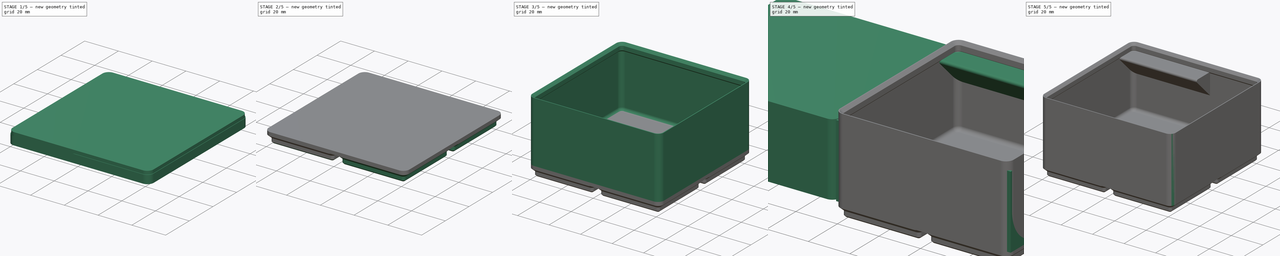
[diagram: build sequence overview — one tinted view per stage of 5, left to right]
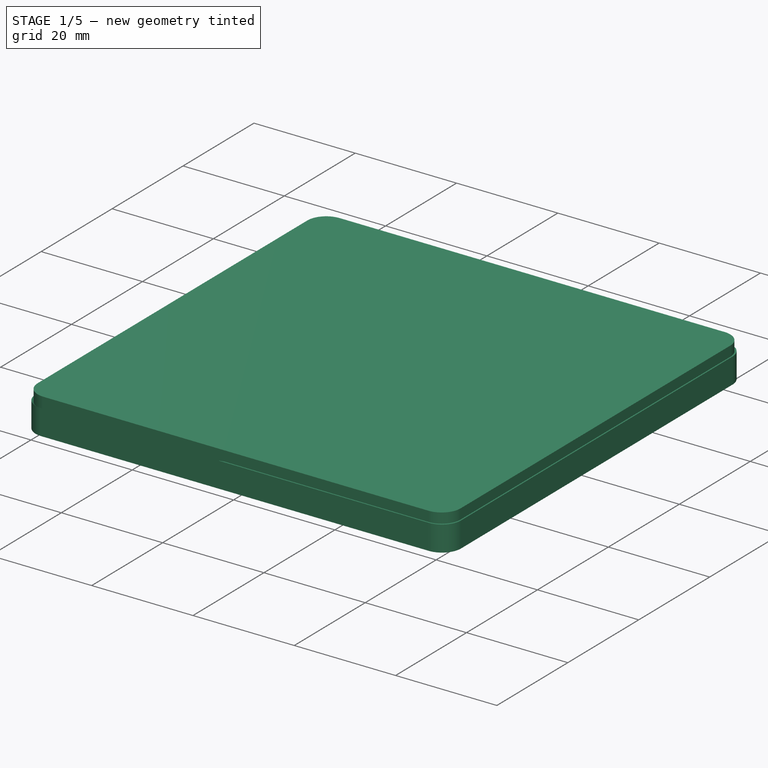
[diagram: stage 1 of 5 — iso view after this stage's code; geometry added in this stage tinted green]
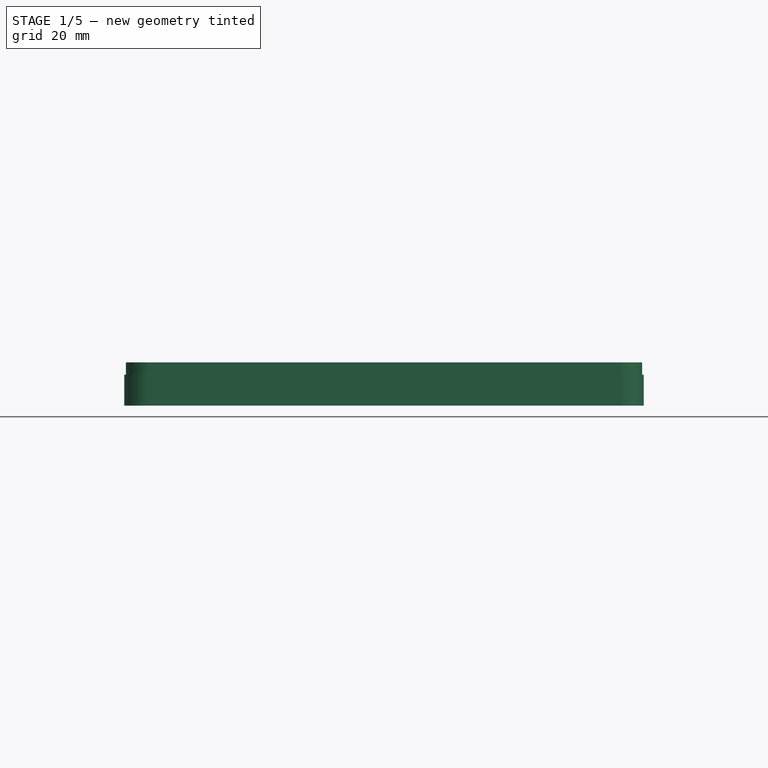
[diagram: stage 1 of 5 — front view after this stage's code; geometry added in this stage tinted green]
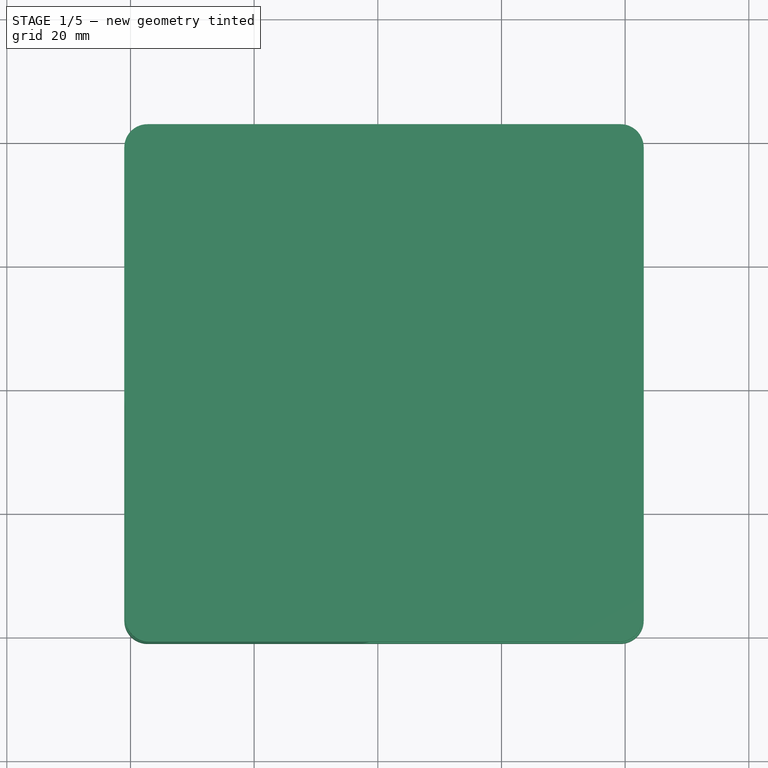
[diagram: stage 1 of 5 — top view after this stage's code; geometry added in this stage tinted green]
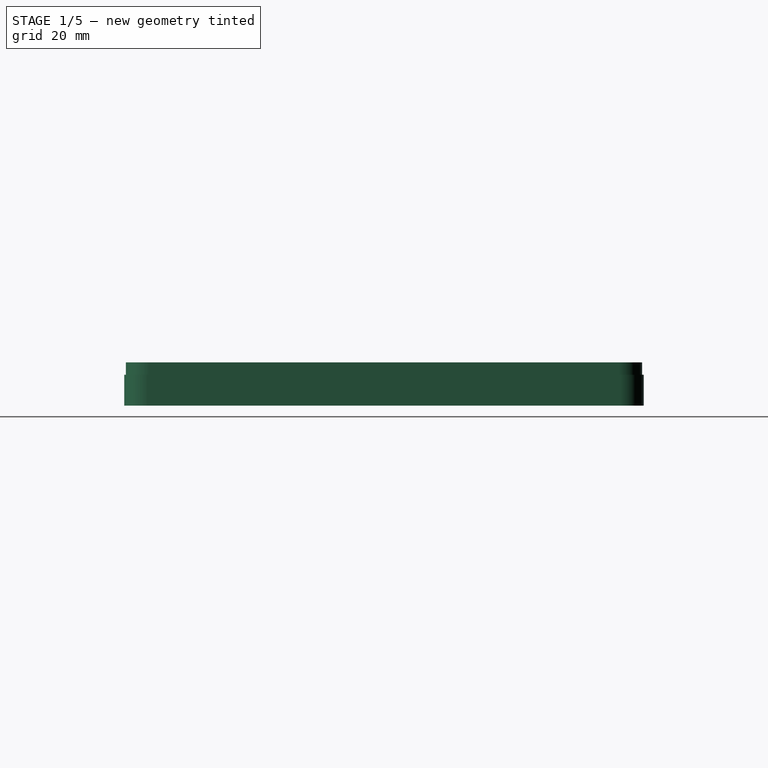
[diagram: stage 1 of 5 — right view after this stage's code; geometry added in this stage tinted green]
FCSTD DOCUMENT  (FreeCAD 0.21R33771 (Git))
Label: Parametric_Gridfinity-Bin
License: Creative Commons Attribution-ShareAlike 4.0
LicenseURL: https://creativecommons.org/licenses/by-sa/4.0/
objects: Sketcher::SketchObject×19, PartDesign::Pocket×6, PartDesign::LinearPattern×6, PartDesign::Pad×5, PartDesign::MultiTransform×3, PartDesign::SubtractiveLoft×2, PartDesign::Body×2, PartDesign::AdditivePipe×2, PartDesign::Mirrored×2, Spreadsheet::Sheet×1, PartDesign::Plane×1, PartDesign::Boolean×1
note: 64 computed .brp shape members not serialized (recipe doc carries the construction recipe); baked Part::Feature solids carry a one-line shape summary decoded from their .brp

FEATURE [Spreadsheet::Sheet] Spreadsheet  label="data"
  cells = A1='     BASIC VARIABLES - Create your bin here.; A2='x_units; B2(x_units)=2; C2='     This is your grid size; A3='y_units; B3(y_units)=2; A4='z_units; B4(z_units)=6; C4='     This is your bin height - 6u is a good default; A5='mag_dia; B5(mag_hole_dia)==6.5 mm; C5='     Pocket size for 6x2mm magnets - 6,5mm is Gridfinity spec; A6='layer_height; B6(layer_height)==0.2 mm; C6='     Specify the layer height set in your slicer to ensure the screw hole print support prints correctly.; A7='wall_thickness; B7(wall_thickness)==0.95 mm; C7='     Default is 0.95mm. Values above 1.65mm will break the model ; A9='     Optional features: Set to 1 to enable, 0 to disable; A10='toggle_lip; B10(toggle_lip)=1; C10='     The profile top lip makes the bins stackable.; A11='toggle_scoop; B11(toggle_scoop)=1; C11='     A scooped bottom to make extracting small parts easier.; A12='toggle_handle; B12(toggle_handle)=1; C12='     A handle / space for label stickers.; A13='toggle_handle_fullwidth; B13(toggle_handle_fullwidth)=0; C13='     If enabled, the handle will span the full width of the bin. If disabled, handle will have the length specified below.; A14='toggle_magholes; B14(toggle_magholes)=1; C14='     Recesses in the bottom to fit magnets. Disable to improve print time.; A15='toggle_screwholes; B15(toggle_screwholes)=1; C15='     Recess to add screws instead of magnets, for use with magnetic base plates. Must enable magnet holes as well.; A16='toggle_fill; B16(toggle_fill)=0; C16='     Fill the inside of the bin, providing you with a template to add add cut outs as needed. Enabling this disables the handle and scoop features.; A17='handle_length; B17(handle_length)==50 mm; C17='     Set handle length. Only applies if "toggle_handle_fullwidth" is set to 0.; A18='handle_depth; B18(handle_depth)==11 mm; C18='     How far the handle protrudes into the bin. Use the width of your label tape + 2mm.; A19='toggle_efficientfloor; B19(toggle_efficientfloor)=0; C19='     Efficient floors hollow out the bottom section of the bin, using much less filament. If enabled, this will disable mag-holes, screw-holes, bin-fill, and scoop.; A20='floor_thickness; B20(floor_thickness)==wall_thickness; C20='     Defaults to wall_thickness, but can be overwritten.; A23='     GRIDFINITY SPEC BASE VALUES - Don't change if you want to stay compatible; F23='     LOGIC FOR FEATURE-TOGGLING - DON'T MESS WITH THIS!; A24='xy_unit_val; B24(xy_unit_val)==42 mm; F24='eq_lip; G24(eq_lip)==toggle_lip == 1 ? 1 : 0.0001; A25='z_unit_val; B25(z_unit_val)==7 mm; F25='eq_scoop; G25(eq_scoop)==toggle_scoop * 3 + toggle_fill + toggle_efficientfloor == 3 ? 1 : -1; A26='corner_top; B26(corner_top)==7.5 mm; F26='eq_handle; G26(eq_handle)==toggle_handle * 2 + toggle_fill == 2 ? 1 : -1; A27='corner_mid; B27(corner_mid)==3.2 mm; F27='eq_handle_length; G27(eq_handle_length)==toggle_handle_fullwidth == 1 ? xy_unit_val * x_units : handle_length; A28='corner_btm; B28(corner_btm)==1.6 mm; F28='eq_magnets; G28(eq_magnets)==toggle_magholes * 2 + toggle_efficientfloor == 2 ? 0 : 100000; A29='angle; B29(angle)==45 °; F29='eq_screws; G29(eq_screws)==toggle_screwholes * 2 + toggle_magholes * 2 + toggle_efficientfloor == 4 ? 0 : 100000; F30='eq_fill; G30(eq_fill)==toggle_fill * 2 + toggle_efficientfloor == 2 ? 0 : eq_filloffset * -1; A31='h_top; B31(h_top)==2.15 mm; F31='eq_floor; G31(eq_floor)==toggle_efficientfloor == 0 ? 100000 : baseplate_z - offset; A32='h_mid; B32(h_mid)==1.8 mm; A33='h_btm; B33(h_btm)==0.8 mm; F33='eq_filloffset; G33(eq_filloffset)==xy_unit_val * x_units - 2 * offset; A34='xy_top; B34(xy_top)==41.5 mm; A35='xy_mid; B35(xy_mid)==xy_top - 2 * h_top; A36='xy_btm; B36(xy_btm)==xy_top - 2 * (h_top + h_btm); A37='baseplate_z; B37(baseplate_z)==5 mm; A39='offset; B39(offset)==0.25 mm; A41='mag_depth; B41(mag_depth)==2.4 mm; A42='screw_dia; B42(screw_dia)==3 mm; C42='for M3 x 4mm flat head screws - This too is Gridfinity spec; A43='screw_depth; B43(screw_depth)==4.3 mm; A44='hole_inset; B44(hole_inset)==4.8 mm; A46='chamfer_rad_inner_btm; B46(chamfer_rad_inner_btm)==3 mm; A47='inside_btm_chamfer; B47(inside_btm_chamfer)==2 mm; A48='handle_rad; B48(handle_rad)==1 mm
FEATURE [Sketcher::SketchObject] Sketch
  FullyConstrained = true
  MapMode = 5
  Support = -> [XY_Plane]
  expr: Constraints[19] = <<data>>.corner_top
  expr: Constraints[20] = <<data>>.xy_unit_val * <<data>>.x_units
  expr: Constraints[21] = <<data>>.xy_unit_val * <<data>>.y_units
  expr: Constraints[22] = <<data>>.xy_unit_val / 2
  expr: Constraints[23] = <<data>>.xy_unit_val / 2
  sketch-geometry (10):
    g0: ArcOfCircle CenterX=-17.25 CenterY=59.25 CenterZ=0 NormalX=0 NormalY=0 NormalZ=1 AngleXU=0 Radius=3.75 StartAngle=1.5708 EndAngle=3.14159
    g1: LineSegment StartX=-17.25 StartY=63 StartZ=0 EndX=59.25 EndY=63 EndZ=0
    g2: ArcOfCircle CenterX=59.25 CenterY=59.25 CenterZ=0 NormalX=0 NormalY=0 NormalZ=1 AngleXU=0 Radius=3.75 StartAngle=3.64e-14 EndAngle=1.5708
    g3: LineSegment StartX=63 StartY=59.25 StartZ=0 EndX=63 EndY=-17.25 EndZ=0
    g4: ArcOfCircle CenterX=59.25 CenterY=-17.25 CenterZ=0 NormalX=0 NormalY=0 NormalZ=1 AngleXU=0 Radius=3.75 StartAngle=4.71239 EndAngle=6.28319
    g5: LineSegment StartX=59.25 StartY=-21 StartZ=0 EndX=-17.25 EndY=-21 EndZ=0
    g6: ArcOfCircle CenterX=-17.25 CenterY=-17.25 CenterZ=0 NormalX=0 NormalY=0 NormalZ=1 AngleXU=0 Radius=3.75 StartAngle=3.14159 EndAngle=4.71239
    g7: LineSegment StartX=-21 StartY=-17.25 StartZ=0 EndX=-21 EndY=59.25 EndZ=0
    g8: GeomPoint X=-21 Y=63 Z=0
    g9: GeomPoint X=63 Y=-21 Z=0
  constraints (24):
    c: Tangent(g0,g1) = 1.5708
    c: Tangent(g1,g2) = 1.5708
    c: Tangent(g2,g3) = 1.5708
    c: Tangent(g3,g4) = 1.5708
    c: Tangent(g4,g5) = 1.5708
    c: Tangent(g5,g6) = 1.5708
    c: Tangent(g6,g7) = 1.5708
    c: Tangent(g7,g0) = 1.5708
    c: Horizontal(g1)
    c: Horizontal(g5)
    c: Vertical(g3)
    c: Vertical(g7)
    c: Equal(g0,g2)
    c: Equal(g2,g4)
    c: Equal(g4,g6)
    c: PointOnObject(g8,g1)
    c: PointOnObject(g8,g7)
    c: PointOnObject(g9,g3)
    c: PointOnObject(g9,g5)
    c: Diameter(g0) = 7.5
    c: DistanceX(g0,g2) = 84
    c: DistanceY(g4,g1) = 84
    c: DistanceY(g5,g-1) = 21
    c: DistanceX(g6,g-1) = 21
FEATURE [PartDesign::Pad] Pad
  Direction = (0,0,1)
  Length = 5
  Length2 = 10
  Profile = -> Sketch
  ReferenceAxis = -> Sketch [N_Axis]
  Type = 0
  expr: Length = <<data>>.baseplate_z
FEATURE [Sketcher::SketchObject] Sketch001  label="top_sk"
  AttachmentOffset = pos=(0,0,5) rot=(0,0,1;0rad)
  FullyConstrained = true
  MapMode = 5
  Placement = pos=(0,0,5) rot=(0,0,1;0rad)
  Support = -> [XY_Plane]
  expr: .AttachmentOffset.Base.z = <<data>>.baseplate_z
  expr: Constraints[20] = <<data>>.corner_top
  expr: Constraints[22] = <<data>>.xy_unit_val
  sketch-geometry (10):
    g0: ArcOfCircle CenterX=-17.25 CenterY=17.25 CenterZ=0 NormalX=0 NormalY=0 NormalZ=1 AngleXU=0 Radius=3.75 StartAngle=1.5708 EndAngle=3.14159
    g1: LineSegment StartX=-17.25 StartY=21 StartZ=0 EndX=17.25 EndY=21 EndZ=0
    g2: ArcOfCircle CenterX=17.25 CenterY=17.25 CenterZ=0 NormalX=0 NormalY=0 NormalZ=1 AngleXU=0 Radius=3.75 StartAngle=0 EndAngle=1.5708
    g3: LineSegment StartX=21 StartY=17.25 StartZ=0 EndX=21 EndY=-17.25 EndZ=0
    g4: ArcOfCircle CenterX=17.25 CenterY=-17.25 CenterZ=0 NormalX=0 NormalY=0 NormalZ=1 AngleXU=0 Radius=3.75 StartAngle=4.71239 EndAngle=6.28319
    g5: LineSegment StartX=17.25 StartY=-21 StartZ=0 EndX=-17.25 EndY=-21 EndZ=0
    g6: ArcOfCircle CenterX=-17.25 CenterY=-17.25 CenterZ=0 NormalX=0 NormalY=0 NormalZ=1 AngleXU=0 Radius=3.75 StartAngle=3.14159 EndAngle=4.71239
    g7: LineSegment StartX=-21 StartY=-17.25 StartZ=0 EndX=-21 EndY=17.25 EndZ=0
    g8: GeomPoint X=-21 Y=21 Z=0
    g9: GeomPoint X=21 Y=-21 Z=0
  constraints (23):
    c: Tangent(g0,g1) = 1.5708
    c: Tangent(g1,g2) = 1.5708
    c: Tangent(g2,g3) = 1.5708
    c: Tangent(g3,g4) = 1.5708
    c: Tangent(g4,g5) = 1.5708
    c: Tangent(g5,g6) = 1.5708
    c: Tangent(g6,g7) = 1.5708
    c: Tangent(g7,g0) = 1.5708
    c: Horizontal(g1)
    c: Horizontal(g5)
    c: Vertical(g3)
    c: Vertical(g7)
    c: Equal(g0,g2)
    c: Equal(g2,g4)
    c: Equal(g4,g6)
    c: PointOnObject(g8,g1)
    c: PointOnObject(g8,g7)
    c: PointOnObject(g9,g3)
    c: PointOnObject(g9,g5)
    c: Symmetric(g2,g6,g-1)
    c: Diameter(g2) = 7.5
    c: Equal(g1,g3)
    c: DistanceX(g0,g2) = 42
FEATURE [Sketcher::SketchObject] Sketch002  label="mid_sk"
  AttachmentOffset = pos=(0,0,2.85) rot=(0,0,1;0rad)
  FullyConstrained = true
  MapMode = 5
  Placement = pos=(0,0,2.85) rot=(0,0,1;0rad)
  Support = -> [XY_Plane]
  expr: .AttachmentOffset.Base.z = <<data>>.baseplate_z - <<data>>.h_top
  expr: Constraints[20] = <<data>>.corner_mid
  expr: Constraints[22] = <<data>>.xy_mid
  sketch-geometry (10):
    g0: ArcOfCircle CenterX=-17 CenterY=17 CenterZ=0 NormalX=0 NormalY=0 NormalZ=1 AngleXU=0 Radius=1.6 StartAngle=1.5708 EndAngle=3.14159
    g1: LineSegment StartX=-17 StartY=18.6 StartZ=0 EndX=17 EndY=18.6 EndZ=0
    g2: ArcOfCircle CenterX=17 CenterY=17 CenterZ=0 NormalX=0 NormalY=0 NormalZ=1 AngleXU=0 Radius=1.6 StartAngle=5e-16 EndAngle=1.5708
    g3: LineSegment StartX=18.6 StartY=17 StartZ=0 EndX=18.6 EndY=-17 EndZ=0
    g4: ArcOfCircle CenterX=17 CenterY=-17 CenterZ=0 NormalX=0 NormalY=0 NormalZ=1 AngleXU=0 Radius=1.6 StartAngle=4.71239 EndAngle=6.28319
    g5: LineSegment StartX=17 StartY=-18.6 StartZ=0 EndX=-17 EndY=-18.6 EndZ=0
    g6: ArcOfCircle CenterX=-17 CenterY=-17 CenterZ=0 NormalX=0 NormalY=0 NormalZ=1 AngleXU=0 Radius=1.6 StartAngle=3.14159 EndAngle=4.71239
    g7: LineSegment StartX=-18.6 StartY=-17 StartZ=0 EndX=-18.6 EndY=17 EndZ=0
    g8: GeomPoint X=-18.6 Y=18.6 Z=0
    g9: GeomPoint X=18.6 Y=-18.6 Z=0
  constraints (23):
    c: Tangent(g0,g1) = 1.5708
    c: Tangent(g1,g2) = 1.5708
    c: Tangent(g2,g3) = 1.5708
    c: Tangent(g3,g4) = 1.5708
    c: Tangent(g4,g5) = 1.5708
    c: Tangent(g5,g6) = 1.5708
    c: Tangent(g6,g7) = 1.5708
    c: Tangent(g7,g0) = 1.5708
    c: Horizontal(g1)
    c: Horizontal(g5)
    c: Vertical(g3)
    c: Vertical(g7)
    c: Equal(g0,g2)
    c: Equal(g2,g4)
    c: Equal(g4,g6)
    c: PointOnObject(g8,g1)
    c: PointOnObject(g8,g7)
    c: PointOnObject(g9,g3)
    c: PointOnObject(g9,g5)
    c: Symmetric(g2,g6,g-1)
    c: Diameter(g2) = 3.2
    c: Equal(g1,g3)
    c: DistanceX(g0,g2) = 37.2
FEATURE [Sketcher::SketchObject] Sketch003  label="btm_sk"
  FullyConstrained = true
  MapMode = 5
  Support = -> [XY_Plane]
  expr: Constraints[20] = <<data>>.corner_btm
  expr: Constraints[22] = <<data>>.xy_btm
  sketch-geometry (10):
    g0: ArcOfCircle CenterX=-17 CenterY=17 CenterZ=0 NormalX=0 NormalY=0 NormalZ=1 AngleXU=0 Radius=0.8 StartAngle=1.5708 EndAngle=3.14159
    g1: LineSegment StartX=-17 StartY=17.8 StartZ=0 EndX=17 EndY=17.8 EndZ=0
    g2: ArcOfCircle CenterX=17 CenterY=17 CenterZ=0 NormalX=0 NormalY=0 NormalZ=1 AngleXU=0 Radius=0.8 StartAngle=-9e-16 EndAngle=1.5708
    g3: LineSegment StartX=17.8 StartY=17 StartZ=0 EndX=17.8 EndY=-17 EndZ=0
    g4: ArcOfCircle CenterX=17 CenterY=-17 CenterZ=0 NormalX=0 NormalY=0 NormalZ=1 AngleXU=0 Radius=0.8 StartAngle=4.71239 EndAngle=6.28319
    g5: LineSegment StartX=17 StartY=-17.8 StartZ=0 EndX=-17 EndY=-17.8 EndZ=0
    g6: ArcOfCircle CenterX=-17 CenterY=-17 CenterZ=0 NormalX=0 NormalY=0 NormalZ=1 AngleXU=0 Radius=0.8 StartAngle=3.14159 EndAngle=4.71239
    g7: LineSegment StartX=-17.8 StartY=-17 StartZ=0 EndX=-17.8 EndY=17 EndZ=0
    g8: GeomPoint X=-17.8 Y=17.8 Z=0
    g9: GeomPoint X=17.8 Y=-17.8 Z=0
  constraints (23):
    c: Tangent(g0,g1) = 1.5708
    c: Tangent(g1,g2) = 1.5708
    c: Tangent(g2,g3) = 1.5708
    c: Tangent(g3,g4) = 1.5708
    c: Tangent(g4,g5) = 1.5708
    c: Tangent(g5,g6) = 1.5708
    c: Tangent(g6,g7) = 1.5708
    c: Tangent(g7,g0) = 1.5708
    c: Horizontal(g1)
    c: Horizontal(g5)
    c: Vertical(g3)
    c: Vertical(g7)
    c: Equal(g0,g2)
    c: Equal(g2,g4)
    c: Equal(g4,g6)
    c: PointOnObject(g8,g1)
    c: PointOnObject(g8,g7)
    c: PointOnObject(g9,g3)
    c: PointOnObject(g9,g5)
    c: Symmetric(g2,g6,g-1)
    c: Diameter(g2) = 1.6
    c: Equal(g1,g3)
    c: DistanceX(g0,g2) = 35.6
FEATURE [PartDesign::Plane] DatumPlane  label="mid"
  AttachmentOffset = pos=(0,0,0.8) rot=(0,0,1;0rad)
  Length = 60
  MapMode = 13
  Placement = pos=(-5.93333,-17.5333,0.8) rot=(0,0,1;0rad)
  ResizeMode = 0
  Support = -> [Sketch003]
  Width = 60
  expr: .AttachmentOffset.Base.z = <<data>>.h_btm
FEATURE [Sketcher::SketchObject] Sketch004  label="mid_sk2"
  AttachmentOffset = pos=(0,0,2.85) rot=(0,0,1;0rad)
  FullyConstrained = true
  MapMode = 5
  Placement = pos=(0,0,2.85) rot=(0,0,1;0rad)
  Support = -> [XY_Plane]
  expr: .AttachmentOffset.Base.z = <<data>>.baseplate_z - <<data>>.h_top
  expr: Constraints[20] = <<data>>.corner_mid
  expr: Constraints[22] = <<data>>.xy_mid
  sketch-geometry (10):
    g0: ArcOfCircle CenterX=-17 CenterY=17 CenterZ=0 NormalX=0 NormalY=0 NormalZ=1 AngleXU=0 Radius=1.6 StartAngle=1.5708 EndAngle=3.14159
    g1: LineSegment StartX=-17 StartY=18.6 StartZ=0 EndX=17 EndY=18.6 EndZ=0
    g2: ArcOfCircle CenterX=17 CenterY=17 CenterZ=0 NormalX=0 NormalY=0 NormalZ=1 AngleXU=0 Radius=1.6 StartAngle=4e-16 EndAngle=1.5708
    g3: LineSegment StartX=18.6 StartY=17 StartZ=0 EndX=18.6 EndY=-17 EndZ=0
    g4: ArcOfCircle CenterX=17 CenterY=-17 CenterZ=0 NormalX=0 NormalY=0 NormalZ=1 AngleXU=0 Radius=1.6 StartAngle=4.71239 EndAngle=6.28319
    g5: LineSegment StartX=17 StartY=-18.6 StartZ=0 EndX=-17 EndY=-18.6 EndZ=0
    g6: ArcOfCircle CenterX=-17 CenterY=-17 CenterZ=0 NormalX=0 NormalY=0 NormalZ=1 AngleXU=0 Radius=1.6 StartAngle=3.14159 EndAngle=4.71239
    g7: LineSegment StartX=-18.6 StartY=-17 StartZ=0 EndX=-18.6 EndY=17 EndZ=0
    g8: GeomPoint X=-18.6 Y=18.6 Z=0
    g9: GeomPoint X=18.6 Y=-18.6 Z=0
  constraints (23):
    c: Tangent(g0,g1) = 1.5708
    c: Tangent(g1,g2) = 1.5708
    c: Tangent(g2,g3) = 1.5708
    c: Tangent(g3,g4) = 1.5708
    c: Tangent(g4,g5) = 1.5708
    c: Tangent(g5,g6) = 1.5708
    c: Tangent(g6,g7) = 1.5708
    c: Tangent(g7,g0) = 1.5708
    c: Horizontal(g1)
    c: Horizontal(g5)
    c: Vertical(g3)
    c: Vertical(g7)
    c: Equal(g0,g2)
    c: Equal(g2,g4)
    c: Equal(g4,g6)
    c: PointOnObject(g8,g1)
    c: PointOnObject(g8,g7)
    c: PointOnObject(g9,g3)
    c: PointOnObject(g9,g5)
    c: Symmetric(g2,g6,g-1)
    c: Diameter(g2) = 3.2
    c: Equal(g1,g3)
    c: DistanceX(g0,g2) = 37.2
FEATURE [PartDesign::Pocket] Pocket  label="matingface_1"
  BaseFeature = -> Pad
  Direction = (0,0,-1)
  Length = 0
  Length2 = 5
  Profile = -> Sketch004
  ReferenceAxis = -> Sketch004 [N_Axis]
  Type = 3
  UpToFace = -> DatumPlane [Plane]
FEATURE [PartDesign::SubtractiveLoft] SubtractiveLoft  label="matingface_2"
  BaseFeature = -> Pocket
  Closed = false
  Profile = -> Sketch001
  Ruled = false
  Sections = -> [Sketch002]
FEATURE [PartDesign::Body] Body  label="Baseplate_negative"
  Group = -> [Sketch,Pad,Sketch001,Sketch002,Sketch003,DatumPlane,Sketch004,Pocket,SubtractiveLoft,Sketch005,SubtractiveLoft001,MultiTransform,LinearPattern,LinearPattern001]
  Origin = -> Origin
  Tip = -> MultiTransform
FEATURE [Sketcher::SketchObject] Sketch007  label="Bin_base_sk"
  FullyConstrained = true
  MapMode = 5
  Support = -> [XY_Plane001]
  expr: Constraints[19] = <<data>>.corner_top
  expr: Constraints[20] = <<data>>.xy_unit_val * <<data>>.x_units - 2 * <<data>>.offset
  expr: Constraints[21] = <<data>>.xy_unit_val * <<data>>.y_units - 2 * <<data>>.offset
  expr: Constraints[22] = <<data>>.xy_unit_val / 2 - <<data>>.offset
  expr: Constraints[23] = <<data>>.xy_unit_val / 2 - <<data>>.offset
  sketch-geometry (10):
    g0: ArcOfCircle CenterX=-17 CenterY=59 CenterZ=0 NormalX=0 NormalY=0 NormalZ=1 AngleXU=0 Radius=3.75 StartAngle=1.5708 EndAngle=3.14159
    g1: LineSegment StartX=-17 StartY=62.75 StartZ=0 EndX=59 EndY=62.75 EndZ=0
    g2: ArcOfCircle CenterX=59 CenterY=59 CenterZ=0 NormalX=0 NormalY=0 NormalZ=1 AngleXU=0 Radius=3.75 StartAngle=3.73e-14 EndAngle=1.5708
    g3: LineSegment StartX=62.75 StartY=59 StartZ=0 EndX=62.75 EndY=-17 EndZ=0
    g4: ArcOfCircle CenterX=59 CenterY=-17 CenterZ=0 NormalX=0 NormalY=0 NormalZ=1 AngleXU=0 Radius=3.75 StartAngle=4.71239 EndAngle=6.28319
    g5: LineSegment StartX=59 StartY=-20.75 StartZ=0 EndX=-17 EndY=-20.75 EndZ=0
    g6: ArcOfCircle CenterX=-17 CenterY=-17 CenterZ=0 NormalX=0 NormalY=0 NormalZ=1 AngleXU=0 Radius=3.75 StartAngle=3.14159 EndAngle=4.71239
    g7: LineSegment StartX=-20.75 StartY=-17 StartZ=0 EndX=-20.75 EndY=59 EndZ=0
    g8: GeomPoint X=-20.75 Y=62.75 Z=0
    g9: GeomPoint X=62.75 Y=-20.75 Z=0
  constraints (24):
    c: Tangent(g0,g1) = 1.5708
    c: Tangent(g1,g2) = 1.5708
    c: Tangent(g2,g3) = 1.5708
    c: Tangent(g3,g4) = 1.5708
    c: Tangent(g4,g5) = 1.5708
    c: Tangent(g5,g6) = 1.5708
    c: Tangent(g6,g7) = 1.5708
    c: Tangent(g7,g0) = 1.5708
    c: Horizontal(g1)
    c: Horizontal(g5)
    c: Vertical(g3)
    c: Vertical(g7)
    c: Equal(g0,g2)
    c: Equal(g2,g4)
    c: Equal(g4,g6)
    c: PointOnObject(g8,g1)
    c: PointOnObject(g8,g7)
    c: PointOnObject(g9,g3)
    c: PointOnObject(g9,g5)
    c: Diameter(g0) = 7.5
    c: DistanceX(g0,g2) = 83.5
    c: DistanceY(g4,g1) = 83.5
    c: DistanceY(g5,g-1) = 20.75
    c: DistanceX(g6,g-1) = 20.75
FEATURE [PartDesign::Pad] Pad001  label="Base_Pad"
  Direction = (0,0,1)
  Length = 7
  Length2 = 10
  Profile = -> Sketch007
  ReferenceAxis = -> Sketch007 [N_Axis]
  Type = 0
  expr: Length = <<data>>.z_unit_val
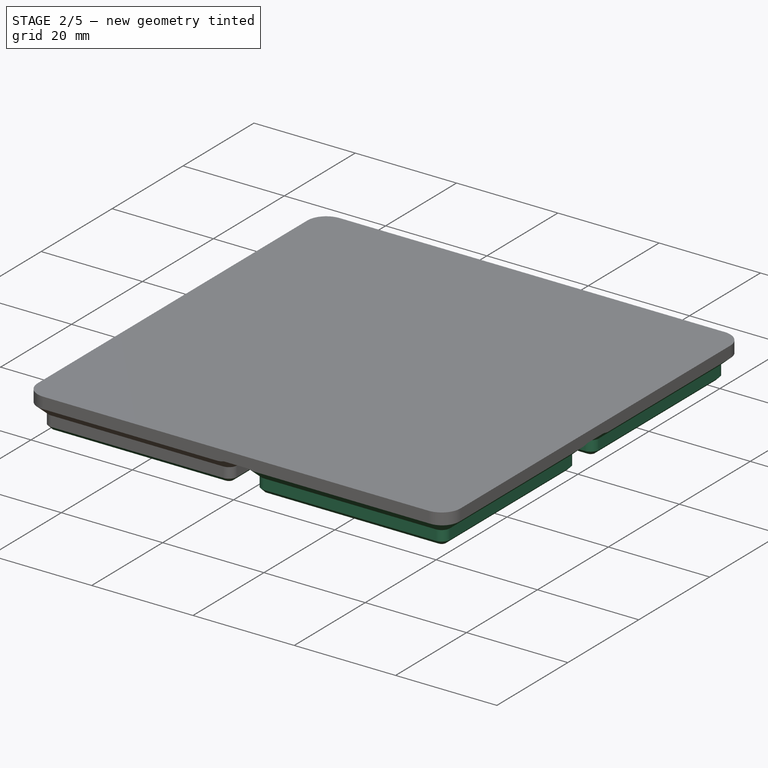
[diagram: stage 2 of 5 — iso view after this stage's code; geometry added in this stage tinted green]
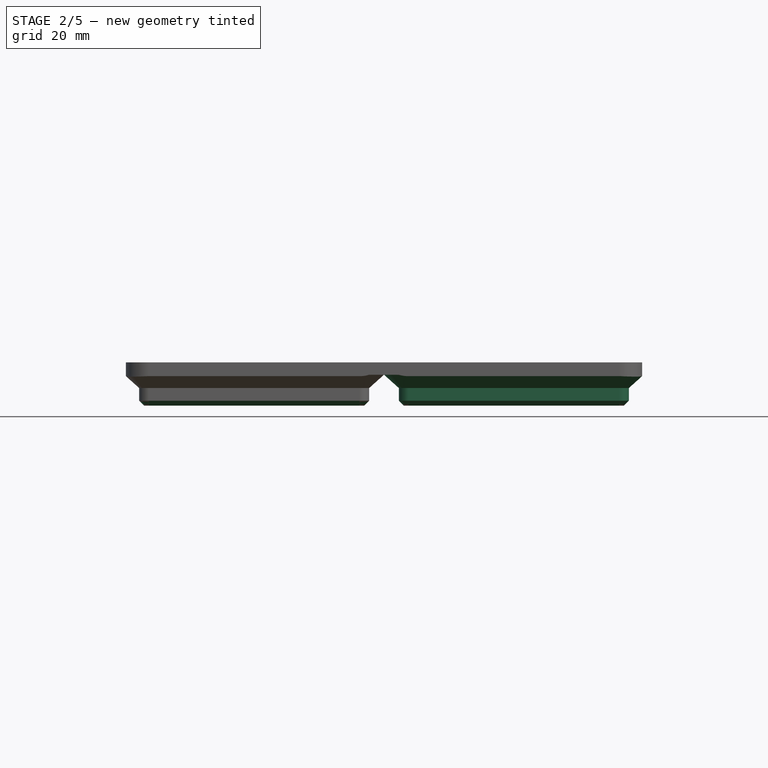
[diagram: stage 2 of 5 — front view after this stage's code; geometry added in this stage tinted green]
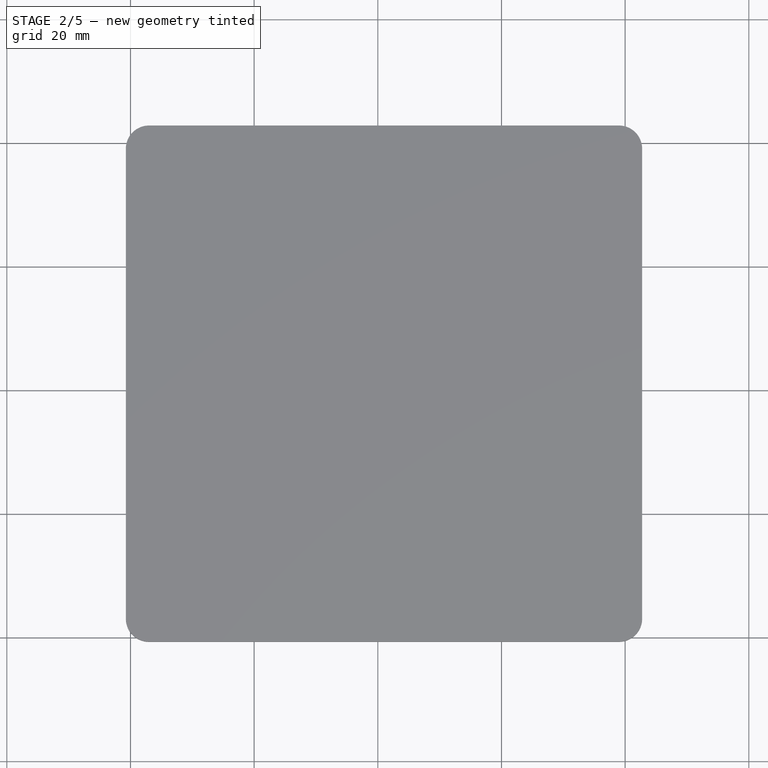
[diagram: stage 2 of 5 — top view after this stage's code; geometry added in this stage tinted green]
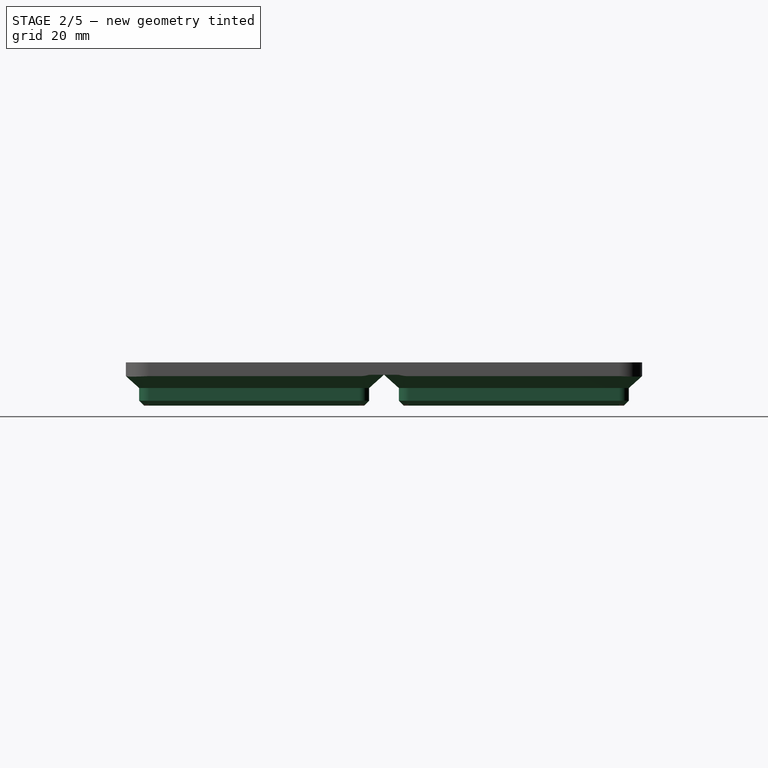
[diagram: stage 2 of 5 — right view after this stage's code; geometry added in this stage tinted green]
FEATURE [Sketcher::SketchObject] Sketch005  label="mid_sk3"
  AttachmentOffset = pos=(0,0,0.8) rot=(0,0,1;0rad)
  FullyConstrained = true
  MapMode = 5
  Placement = pos=(0,0,0.8) rot=(0,0,1;0rad)
  Support = -> [XY_Plane]
  expr: .AttachmentOffset.Base.z = <<data>>.h_btm
  expr: Constraints[20] = <<data>>.corner_mid
  expr: Constraints[22] = <<data>>.xy_mid
  sketch-geometry (10):
    g0: ArcOfCircle CenterX=-17 CenterY=17 CenterZ=0 NormalX=0 NormalY=0 NormalZ=1 AngleXU=0 Radius=1.6 StartAngle=1.5708 EndAngle=3.14159
    g1: LineSegment StartX=-17 StartY=18.6 StartZ=0 EndX=17 EndY=18.6 EndZ=0
    g2: ArcOfCircle CenterX=17 CenterY=17 CenterZ=0 NormalX=0 NormalY=0 NormalZ=1 AngleXU=0 Radius=1.6 StartAngle=7e-16 EndAngle=1.5708
    g3: LineSegment StartX=18.6 StartY=17 StartZ=0 EndX=18.6 EndY=-17 EndZ=0
    g4: ArcOfCircle CenterX=17 CenterY=-17 CenterZ=0 NormalX=0 NormalY=0 NormalZ=1 AngleXU=0 Radius=1.6 StartAngle=4.71239 EndAngle=6.28319
    g5: LineSegment StartX=17 StartY=-18.6 StartZ=0 EndX=-17 EndY=-18.6 EndZ=0
    g6: ArcOfCircle CenterX=-17 CenterY=-17 CenterZ=0 NormalX=0 NormalY=0 NormalZ=1 AngleXU=0 Radius=1.6 StartAngle=3.14159 EndAngle=4.71239
    g7: LineSegment StartX=-18.6 StartY=-17 StartZ=0 EndX=-18.6 EndY=17 EndZ=0
    g8: GeomPoint X=-18.6 Y=18.6 Z=0
    g9: GeomPoint X=18.6 Y=-18.6 Z=0
  constraints (23):
    c: Tangent(g0,g1) = 1.5708
    c: Tangent(g1,g2) = 1.5708
    c: Tangent(g2,g3) = 1.5708
    c: Tangent(g3,g4) = 1.5708
    c: Tangent(g4,g5) = 1.5708
    c: Tangent(g5,g6) = 1.5708
    c: Tangent(g6,g7) = 1.5708
    c: Tangent(g7,g0) = 1.5708
    c: Horizontal(g1)
    c: Horizontal(g5)
    c: Vertical(g3)
    c: Vertical(g7)
    c: Equal(g0,g2)
    c: Equal(g2,g4)
    c: Equal(g4,g6)
    c: PointOnObject(g8,g1)
    c: PointOnObject(g8,g7)
    c: PointOnObject(g9,g3)
    c: PointOnObject(g9,g5)
    c: Symmetric(g2,g6,g-1)
    c: Diameter(g2) = 3.2
    c: Equal(g1,g3)
    c: DistanceX(g0,g2) = 37.2
FEATURE [PartDesign::SubtractiveLoft] SubtractiveLoft001  label="matingface_3"
  BaseFeature = -> SubtractiveLoft
  Closed = false
  Profile = -> Sketch003
  Ruled = false
  Sections = -> [Sketch005]
FEATURE [PartDesign::LinearPattern] LinearPattern
  Direction = -> X_Axis
  Length = 84
  Occurrences = 3
  expr: Length = <<data>>.xy_unit_val * <<data>>.x_units
  expr: Occurrences = <<data>>.x_units + 1
FEATURE [PartDesign::LinearPattern] LinearPattern001
  Direction = -> Y_Axis
  Length = 84
  Occurrences = 3
  expr: Length = <<data>>.xy_unit_val * <<data>>.y_units
  expr: Occurrences = <<data>>.y_units + 1
FEATURE [PartDesign::MultiTransform] MultiTransform
  BaseFeature = -> SubtractiveLoft001
  Originals = -> [Pocket,SubtractiveLoft,SubtractiveLoft001]
  Transformations = -> [LinearPattern,LinearPattern001]
FEATURE [Sketcher::SketchObject] Sketch008  label="Lip_path"
  AttachmentOffset = pos=(0,0,42) rot=(0,0,1;0rad)
  FullyConstrained = true
  MapMode = 5
  Placement = pos=(0,0,42) rot=(0,0,1;0rad)
  Support = -> [XY_Plane001]
  expr: .AttachmentOffset.Base.z = <<data>>.z_unit_val * <<data>>.z_units
  expr: Constraints[19] = <<data>>.corner_top
  expr: Constraints[20] = <<data>>.xy_unit_val * <<data>>.x_units - 2 * <<data>>.offset
  expr: Constraints[21] = <<data>>.xy_unit_val * <<data>>.y_units - 2 * <<data>>.offset
  expr: Constraints[22] = <<data>>.xy_unit_val / 2 - <<data>>.offset
  expr: Constraints[23] = <<data>>.xy_unit_val / 2 - <<data>>.offset
  sketch-geometry (10):
    g0: ArcOfCircle CenterX=-17 CenterY=59 CenterZ=0 NormalX=0 NormalY=0 NormalZ=1 AngleXU=0 Radius=3.75 StartAngle=1.5708 EndAngle=3.14159
    g1: LineSegment StartX=-17 StartY=62.75 StartZ=0 EndX=59 EndY=62.75 EndZ=0
    g2: ArcOfCircle CenterX=59 CenterY=59 CenterZ=0 NormalX=0 NormalY=0 NormalZ=1 AngleXU=0 Radius=3.75 StartAngle=3.64e-14 EndAngle=1.5708
    g3: LineSegment StartX=62.75 StartY=59 StartZ=0 EndX=62.75 EndY=-17 EndZ=0
    g4: ArcOfCircle CenterX=59 CenterY=-17 CenterZ=0 NormalX=0 NormalY=0 NormalZ=1 AngleXU=0 Radius=3.75 StartAngle=4.71239 EndAngle=6.28319
    g5: LineSegment StartX=59 StartY=-20.75 StartZ=0 EndX=-17 EndY=-20.75 EndZ=0
    g6: ArcOfCircle CenterX=-17 CenterY=-17 CenterZ=0 NormalX=0 NormalY=0 NormalZ=1 AngleXU=0 Radius=3.75 StartAngle=3.14159 EndAngle=4.71239
    g7: LineSegment StartX=-20.75 StartY=-17 StartZ=0 EndX=-20.75 EndY=59 EndZ=0
    g8: GeomPoint X=-20.75 Y=62.75 Z=0
    g9: GeomPoint X=62.75 Y=-20.75 Z=0
  constraints (24):
    c: Tangent(g0,g1) = 1.5708
    c: Tangent(g1,g2) = 1.5708
    c: Tangent(g2,g3) = 1.5708
    c: Tangent(g3,g4) = 1.5708
    c: Tangent(g4,g5) = 1.5708
    c: Tangent(g5,g6) = 1.5708
    c: Tangent(g6,g7) = 1.5708
    c: Tangent(g7,g0) = 1.5708
    c: Horizontal(g1)
    c: Horizontal(g5)
    c: Vertical(g3)
    c: Vertical(g7)
    c: Equal(g0,g2)
    c: Equal(g2,g4)
    c: Equal(g4,g6)
    c: PointOnObject(g8,g1)
    c: PointOnObject(g8,g7)
    c: PointOnObject(g9,g3)
    c: PointOnObject(g9,g5)
    c: Diameter(g0) = 7.5
    c: DistanceX(g0,g2) = 83.5
    c: DistanceY(g4,g1) = 83.5
    c: DistanceY(g5,g-1) = 20.75
    c: DistanceX(g6,g-1) = 20.75
FEATURE [Sketcher::SketchObject] Sketch009  label="Lip_profile_modern"
  FullyConstrained = true
  MapMode = 5
  Placement = pos=(0,0,0) rot=(0.57735,0.57735,0.57735;2.0944rad)
  Support = -> [YZ_Plane001]
  expr: Constraints[11] = (<<data>>.h_top - <<data>>.offset - 0.5 mm) * <<data>>.eq_lip
  expr: Constraints[14] = (<<data>>.h_top - <<data>>.offset) * <<data>>.eq_lip
  expr: Constraints[4] = <<data>>.angle
  expr: Constraints[5] = <<data>>.xy_top / 2
  expr: Constraints[6] = (<<data>>.h_mid + <<data>>.h_btm) * <<data>>.eq_lip
  expr: Constraints[7] = <<data>>.angle
  expr: Constraints[9] = <<data>>.z_units * <<data>>.z_unit_val
  sketch-geometry (5):
    g0: LineSegment StartX=-20.75 StartY=40.1 StartZ=0 EndX=-20.75 EndY=46 EndZ=0
    g1: LineSegment StartX=-20.25 StartY=46 StartZ=0 EndX=-18.85 EndY=44.6 EndZ=0
    g2: LineSegment StartX=-18.85 StartY=44.6 StartZ=0 EndX=-18.85 EndY=42 EndZ=0
    g3: LineSegment StartX=-18.85 StartY=42 StartZ=0 EndX=-20.75 EndY=40.1 EndZ=0
    g4: LineSegment StartX=-20.75 StartY=46 StartZ=0 EndX=-20.25 EndY=46 EndZ=0
  constraints (15):
    c: Vertical(g0)
    c: Coincident(g1,g2)
    c: Vertical(g2)
    c: Coincident(g3,g0)
    c: Angle(g-2,g1) = 0.785398
    c: DistanceX(g0,g-1) = 20.75
    c: DistanceY(g2,g2) = 2.6
    c: Angle(g-1,g3) = 0.785398
    c: Coincident(g3,g2)
    c: DistanceY(g-1,g2) = 42
    c: Horizontal(g4)
    c: DistanceY(g1,g4) = 1.4
    c: Coincident(g1,g4)
    c: Coincident(g0,g4)
    c: DistanceX(g0,g1) = 1.9
FEATURE [Sketcher::SketchObject] Sketch010  label="mag_hole_sk"
  FullyConstrained = true
  MapMode = 5
  Support = -> [XY_Plane001]
  expr: .AttachmentOffset.Base.z = <<data>>.eq_magnets
  expr: Constraints[0] = <<data>>.mag_hole_dia
  expr: Constraints[1] = <<data>>.xy_btm / 2 - <<data>>.hole_inset
  expr: Constraints[2] = <<data>>.xy_btm / 2 - <<data>>.hole_inset
  sketch-geometry (1):
    g0: Circle CenterX=-13 CenterY=-13 CenterZ=0 NormalX=0 NormalY=0 NormalZ=1 AngleXU=0 Radius=3.25
  constraints (3):
    c: Diameter(g0) = 6.5
    c: DistanceX(g0,g-1) = 13
    c: DistanceY(g0,g-1) = 13
FEATURE [Sketcher::SketchObject] Sketch011  label="screw_hole_sk"
  FullyConstrained = true
  MapMode = 5
  Support = -> [XY_Plane001]
  expr: .AttachmentOffset.Base.z = <<data>>.eq_screws
  expr: Constraints[0] = <<data>>.screw_dia
  expr: Constraints[1] = <<data>>.xy_btm / 2 - <<data>>.hole_inset
  expr: Constraints[2] = <<data>>.xy_btm / 2 - <<data>>.hole_inset
  sketch-geometry (1):
    g0: Circle CenterX=-13 CenterY=-13 CenterZ=0 NormalX=0 NormalY=0 NormalZ=1 AngleXU=0 Radius=1.5
  constraints (3):
    c: Diameter(g0) = 3
    c: DistanceX(g0,g-1) = 13
    c: DistanceY(g0,g-1) = 13
FEATURE [PartDesign::Boolean] Boolean  label="Base_BottomProfile"
  BaseFeature = -> Pad001
  Group = -> [Body]
  Type = 1
FEATURE [PartDesign::Pocket] Pocket001  label="Magnet_hole_template"
  BaseFeature = -> Boolean
  Direction = (0,0,-1)
  Length = 2.4
  Length2 = 5
  Profile = -> Sketch010
  ReferenceAxis = -> Sketch010 [N_Axis]
  Reversed = true
  Type = 0
  expr: Length = <<data>>.mag_depth
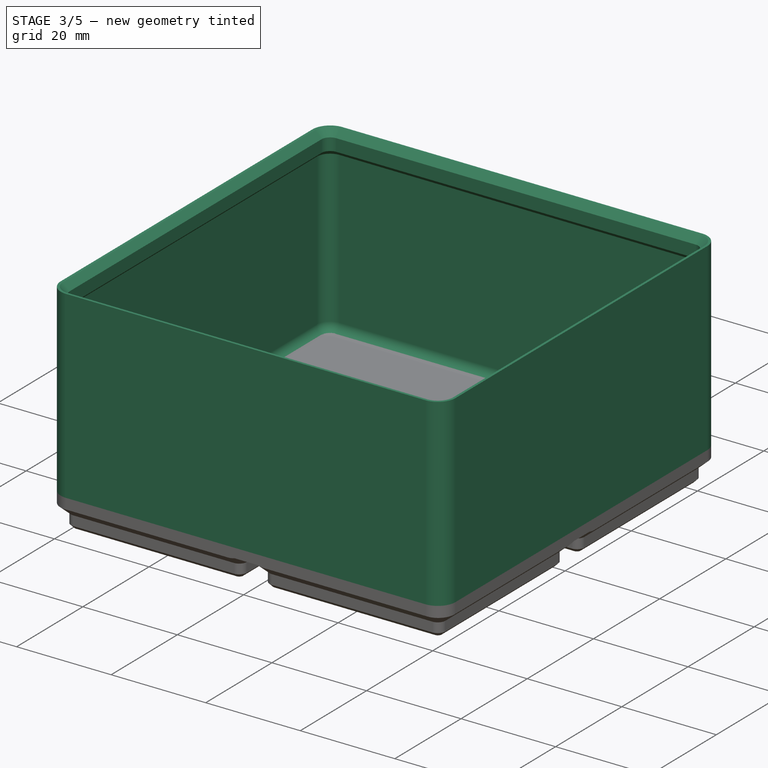
[diagram: stage 3 of 5 — iso view after this stage's code; geometry added in this stage tinted green]
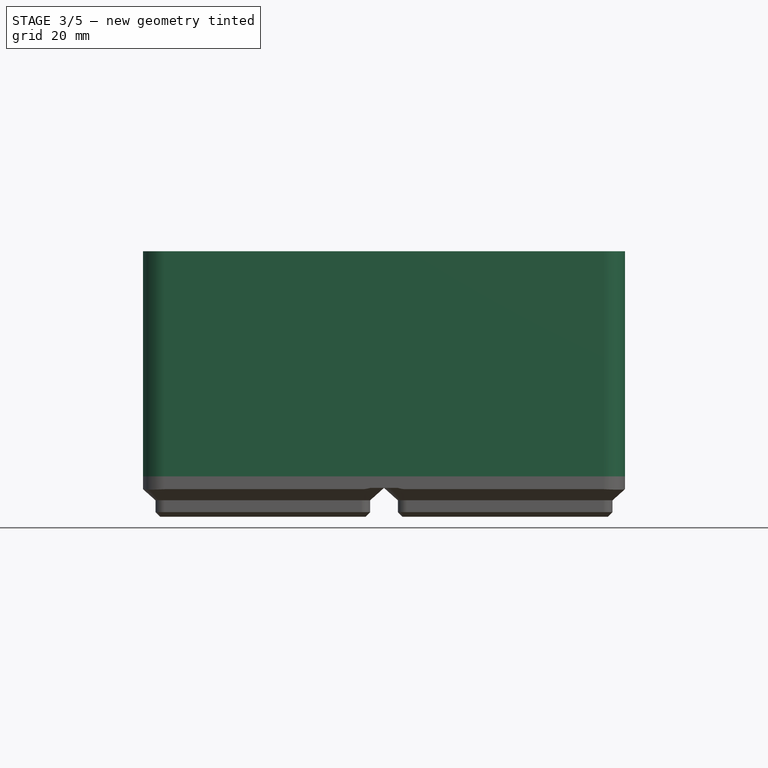
[diagram: stage 3 of 5 — front view after this stage's code; geometry added in this stage tinted green]
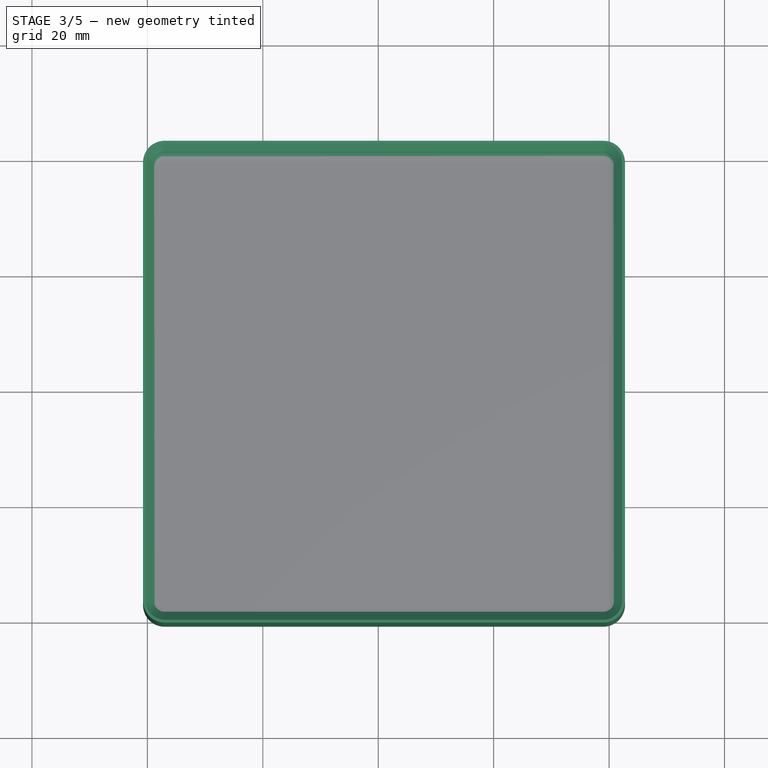
[diagram: stage 3 of 5 — top view after this stage's code; geometry added in this stage tinted green]
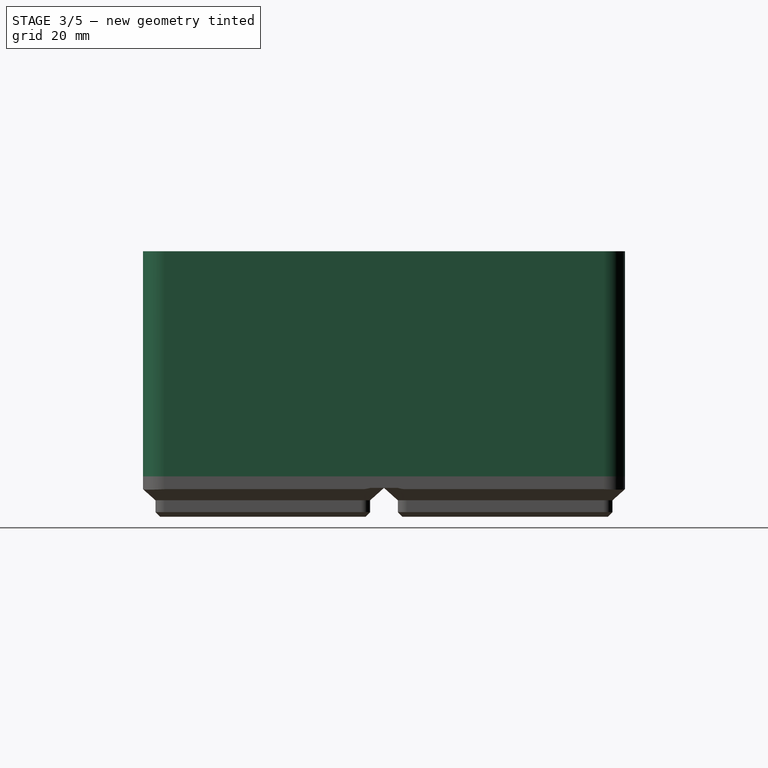
[diagram: stage 3 of 5 — right view after this stage's code; geometry added in this stage tinted green]
FEATURE [PartDesign::Pocket] Pocket002  label="Screw_hole_template"
  BaseFeature = -> Pocket001
  Direction = (0,0,-1)
  Length = 6.7
  Length2 = 5
  Profile = -> Sketch011
  ReferenceAxis = -> Sketch011 [N_Axis]
  Reversed = true
  Type = 0
  expr: Length = <<data>>.screw_depth + <<data>>.mag_depth
FEATURE [Sketcher::SketchObject] Sketch012  label="Wall_path"
  AttachmentOffset = pos=(0,0,7) rot=(0,0,1;0rad)
  FullyConstrained = true
  MapMode = 5
  Placement = pos=(0,0,7) rot=(0,0,1;0rad)
  Support = -> [XY_Plane001]
  expr: .AttachmentOffset.Base.z = <<data>>.z_unit_val
  expr: Constraints[19] = <<data>>.corner_top
  expr: Constraints[20] = <<data>>.xy_unit_val * <<data>>.x_units - 2 * <<data>>.offset
  expr: Constraints[21] = <<data>>.xy_unit_val * <<data>>.y_units - 2 * <<data>>.offset
  expr: Constraints[22] = <<data>>.xy_unit_val / 2 - <<data>>.offset
  expr: Constraints[23] = <<data>>.xy_unit_val / 2 - <<data>>.offset
  sketch-geometry (10):
    g0: ArcOfCircle CenterX=-17 CenterY=59 CenterZ=0 NormalX=0 NormalY=0 NormalZ=1 AngleXU=0 Radius=3.75 StartAngle=1.5708 EndAngle=3.14159
    g1: LineSegment StartX=-17 StartY=62.75 StartZ=0 EndX=59 EndY=62.75 EndZ=0
    g2: ArcOfCircle CenterX=59 CenterY=59 CenterZ=0 NormalX=0 NormalY=0 NormalZ=1 AngleXU=0 Radius=3.75 StartAngle=3.73e-14 EndAngle=1.5708
    g3: LineSegment StartX=62.75 StartY=59 StartZ=0 EndX=62.75 EndY=-17 EndZ=0
    g4: ArcOfCircle CenterX=59 CenterY=-17 CenterZ=0 NormalX=0 NormalY=0 NormalZ=1 AngleXU=0 Radius=3.75 StartAngle=4.71239 EndAngle=6.28319
    g5: LineSegment StartX=59 StartY=-20.75 StartZ=0 EndX=-17 EndY=-20.75 EndZ=0
    g6: ArcOfCircle CenterX=-17 CenterY=-17 CenterZ=0 NormalX=0 NormalY=0 NormalZ=1 AngleXU=0 Radius=3.75 StartAngle=3.14159 EndAngle=4.71239
    g7: LineSegment StartX=-20.75 StartY=-17 StartZ=0 EndX=-20.75 EndY=59 EndZ=0
    g8: GeomPoint X=-20.75 Y=62.75 Z=0
    g9: GeomPoint X=62.75 Y=-20.75 Z=0
  constraints (24):
    c: Tangent(g0,g1) = 1.5708
    c: Tangent(g1,g2) = 1.5708
    c: Tangent(g2,g3) = 1.5708
    c: Tangent(g3,g4) = 1.5708
    c: Tangent(g4,g5) = 1.5708
    c: Tangent(g5,g6) = 1.5708
    c: Tangent(g6,g7) = 1.5708
    c: Tangent(g7,g0) = 1.5708
    c: Horizontal(g1)
    c: Horizontal(g5)
    c: Vertical(g3)
    c: Vertical(g7)
    c: Equal(g0,g2)
    c: Equal(g2,g4)
    c: Equal(g4,g6)
    c: PointOnObject(g8,g1)
    c: PointOnObject(g8,g7)
    c: PointOnObject(g9,g3)
    c: PointOnObject(g9,g5)
    c: Diameter(g0) = 7.5
    c: DistanceX(g0,g2) = 83.5
    c: DistanceY(g4,g1) = 83.5
    c: DistanceY(g5,g-1) = 20.75
    c: DistanceX(g6,g-1) = 20.75
FEATURE [Sketcher::SketchObject] Sketch013  label="wall_profile"
  FullyConstrained = true
  MapMode = 5
  Placement = pos=(0,0,0) rot=(0.57735,0.57735,0.57735;2.0944rad)
  Support = -> [YZ_Plane001]
  expr: Constraints[10] = <<data>>.xy_top / 2
  expr: Constraints[13] = <<data>>.wall_thickness
  expr: Constraints[15] = <<data>>.inside_btm_chamfer
  expr: Constraints[16] = <<data>>.z_unit_val * (<<data>>.z_units - 1)
  expr: Constraints[9] = <<data>>.z_unit_val
  sketch-geometry (7):
    g0: LineSegment StartX=-20.75 StartY=6.98 StartZ=0 EndX=-20.75 EndY=41.98 EndZ=0
    g1: LineSegment StartX=-20.75 StartY=41.98 StartZ=0 EndX=-19.8 EndY=41.98 EndZ=0
    g2: LineSegment StartX=-19.8 StartY=41.98 StartZ=0 EndX=-19.8 EndY=9 EndZ=0
    g3: ArcOfCircle CenterX=-17.8 CenterY=9 CenterZ=0 NormalX=0 NormalY=0 NormalZ=1 AngleXU=0 Radius=2 StartAngle=3.14159 EndAngle=4.71239
    g4: LineSegment StartX=-17.8 StartY=6.98 StartZ=0 EndX=-20.75 EndY=6.98 EndZ=0
    g5: GeomPoint X=-20.75 Y=7 Z=0
    g6: LineSegment StartX=-17.8 StartY=7 StartZ=0 EndX=-17.8 EndY=6.98 EndZ=0
  constraints (20):
    c: Vertical(g0)
    c: Coincident(g0,g1)
    c: Horizontal(g1)
    c: Coincident(g1,g2)
    c: Vertical(g2)
    c: Tangent(g2,g3) = -1.5708
    c: Coincident(g4,g0)
    c: Horizontal(g4)
    c: PointOnObject(g5,g0)
    c: DistanceY(g-1,g5) = 7
    c: DistanceX(g0,g-1) = 20.75
    c: Coincident(g6,g4)
    c: Vertical(g6)
    c: DistanceX(g1,g1) = 0.95
    c: Horizontal(g5,g6)
    c: Radius(g3) = 2
    c: DistanceY(g0,g0) = 35
    c: DistanceY(g0,g5) = 0.02
    c: Coincident(g3,g6)
    c: Perpendicular(g3,g6)
FEATURE [Sketcher::SketchObject] Sketch014  label="Scoop_sk"
  AttachmentOffset = pos=(0,0,-20.75) rot=(0,0,1;0rad)
  FullyConstrained = true
  MapMode = 5
  Placement = pos=(-20.75,4.6e-15,-4.6e-15) rot=(0.57735,0.57735,0.57735;2.0944rad)
  Support = -> [YZ_Plane001]
  expr: .AttachmentOffset.Base.z = -<<data>>.xy_top / 2
  expr: .Constraints.height = (<<data>>.z_units - 1) * <<data>>.z_unit_val + <<data>>.offset
  expr: .Constraints.outer = <<data>>.xy_top / 2 - <<data>>.wall_thickness
  expr: Constraints[11] = .Constraints.height / 2
  expr: Constraints[17] = <<data>>.offset
  expr: Constraints[4] = <<data>>.z_unit_val - <<data>>.offset
  expr: Constraints[6] = <<data>>.wall_thickness
  sketch-geometry (6):
    g0: LineSegment StartX=-1.475 StartY=6.75 StartZ=0 EndX=-19.8 EndY=6.75 EndZ=0
    g1: ArcOfCircle CenterX=-1.475 CenterY=24.375 CenterZ=0 NormalX=0 NormalY=0 NormalZ=1 AngleXU=0 Radius=17.375 StartAngle=3.14159 EndAngle=4.71239
    g2: LineSegment StartX=-19.8 StartY=42 StartZ=0 EndX=-19.8 EndY=6.75 EndZ=0
    g3: LineSegment StartX=-19.8 StartY=42 StartZ=0 EndX=-18.85 EndY=42 EndZ=0
    g4: LineSegment StartX=-18.85 StartY=42 StartZ=0 EndX=-18.85 EndY=24.375 EndZ=0
    g5: LineSegment StartX=-1.475 StartY=7 StartZ=0 EndX=-1.475 EndY=6.75 EndZ=0
  constraints (18):
    c: Horizontal(g0)
    c: Vertical(g2)
    c: Coincident(g2,g0)
    c: DistanceX(g0,g-1) = 19.8  'outer'
    c: DistanceY(g-1,g0) = 6.75
    c: Coincident(g3,g2)
    c: DistanceX(g3,g3) = 0.95
    c: Coincident(g4,g3)
    c: Vertical(g4)
    c: Tangent(g4,g1) = -1.5708
    c: DistanceY(g2,g2) = 35.25  'height'
    c: DistanceY(g4,g4) = 17.625
    c: Horizontal(g3)
    c: Coincident(g5,g1)
    c: Coincident(g5,g0)
    c: Perpendicular(g1,g5)
    c: Vertical(g5)
    c: DistanceY(g5,g5) = 0.25
FEATURE [Sketcher::SketchObject] Sketch015  label="Handle_sk"
  AttachmentOffset = pos=(0,0,-20.75) rot=(0,0,1;0rad)
  FullyConstrained = true
  MapMode = 5
  Placement = pos=(-20.75,4.6e-15,-4.6e-15) rot=(0.57735,0.57735,0.57735;2.0944rad)
  Support = -> [YZ_Plane001]
  expr: .AttachmentOffset.Base.z = -<<data>>.xy_top / 2
  expr: Constraints[10] = <<data>>.angle
  expr: Constraints[3] = <<data>>.z_unit_val * <<data>>.z_units - <<data>>.offset
  expr: Constraints[4] = <<data>>.handle_rad
  expr: Constraints[8] = <<data>>.handle_depth
  expr: Constraints[9] = <<data>>.xy_top / 2 + <<data>>.xy_unit_val * (<<data>>.y_units - 1) - <<data>>.wall_thickness
  sketch-geometry (4):
    g0: LineSegment StartX=61.8 StartY=41.75 StartZ=0 EndX=61.8 EndY=28.3358 EndZ=0
    g1: LineSegment StartX=61.8 StartY=28.3358 StartZ=0 EndX=50.0929 EndY=40.0429 EndZ=0
    g2: ArcOfCircle CenterX=50.8 CenterY=40.75 CenterZ=0 NormalX=0 NormalY=0 NormalZ=1 AngleXU=0 Radius=1 StartAngle=1.5708 EndAngle=3.92699
    g3: LineSegment StartX=50.8 StartY=41.75 StartZ=0 EndX=61.8 EndY=41.75 EndZ=0
  constraints (11):
    c: Vertical(g0)
    c: Coincident(g0,g1)
    c: Tangent(g1,g2) = 1.5708
    c: DistanceY(g-1,g0) = 41.75
    c: Radius(g2) = 1
    c: Coincident(g3,g0)
    c: Horizontal(g3)
    c: Tangent(g3,g2) = 1.5708
    c: DistanceX(g3,g3) = 11
    c: DistanceX(g-1,g0) = 61.8
    c: Angle(g-2,g1) = 0.785398
FEATURE [Sketcher::SketchObject] Sketch016  label="Cleanup_sk"
  AttachmentOffset = pos=(0,0,49) rot=(0,0,1;0rad)
  FullyConstrained = true
  MapMode = 5
  Placement = pos=(0,0,49) rot=(0,0,1;0rad)
  Support = -> [XY_Plane001]
  expr: .AttachmentOffset.Base.z = <<data>>.z_unit_val * (<<data>>.z_units + 1)
  expr: .Constraints.x_dist = <<data>>.xy_unit_val * <<data>>.x_units - 2 * <<data>>.offset
  expr: .Constraints.x_off = <<data>>.xy_unit_val / 2 - <<data>>.offset
  expr: .Constraints.y_dist = <<data>>.xy_unit_val * <<data>>.y_units - 2 * <<data>>.offset
  expr: .Constraints.y_off = <<data>>.xy_unit_val / 2 - <<data>>.offset
  expr: Constraints[19] = <<data>>.corner_top
  expr: Constraints[31] = .Constraints.y_dist + 50 mm
  expr: Constraints[32] = <<data>>.xy_unit_val * <<data>>.x_units * 2 + 50 mm
  sketch-geometry (14):
    g0: ArcOfCircle CenterX=-17 CenterY=59 CenterZ=0 NormalX=0 NormalY=0 NormalZ=1 AngleXU=0 Radius=3.75 StartAngle=1.5708 EndAngle=3.14159
    g1: LineSegment StartX=-17 StartY=62.75 StartZ=0 EndX=59 EndY=62.75 EndZ=0
    g2: ArcOfCircle CenterX=59 CenterY=59 CenterZ=0 NormalX=0 NormalY=0 NormalZ=1 AngleXU=0 Radius=3.75 StartAngle=-9e-16 EndAngle=1.5708
    g3: LineSegment StartX=62.75 StartY=59 StartZ=0 EndX=62.75 EndY=-17 EndZ=0
    g4: ArcOfCircle CenterX=59 CenterY=-17 CenterZ=0 NormalX=0 NormalY=0 NormalZ=1 AngleXU=0 Radius=3.75 StartAngle=4.71239 EndAngle=6.28319
    g5: LineSegment StartX=59 StartY=-20.75 StartZ=0 EndX=-17 EndY=-20.75 EndZ=0
    g6: ArcOfCircle CenterX=-17 CenterY=-17 CenterZ=0 NormalX=0 NormalY=0 NormalZ=1 AngleXU=0 Radius=3.75 StartAngle=3.14159 EndAngle=4.71239
    g7: LineSegment StartX=-20.75 StartY=-17 StartZ=0 EndX=-20.75 EndY=59 EndZ=0
    g8: GeomPoint X=-20.75 Y=62.75 Z=0
    g9: GeomPoint X=62.75 Y=-20.75 Z=0
    g10: LineSegment StartX=-130.25 StartY=87.75 StartZ=0 EndX=87.75 EndY=87.75 EndZ=0
    g11: LineSegment StartX=87.75 StartY=87.75 StartZ=0 EndX=87.75 EndY=-45.75 EndZ=0
    g12: LineSegment StartX=87.75 StartY=-45.75 StartZ=0 EndX=-130.25 EndY=-45.75 EndZ=0
    g13: LineSegment StartX=-130.25 StartY=-45.75 StartZ=0 EndX=-130.25 EndY=87.75 EndZ=0
  constraints (36):
    c: Tangent(g0,g1) = 1.5708
    c: Tangent(g1,g2) = 1.5708
    c: Tangent(g2,g3) = 1.5708
    c: Tangent(g3,g4) = 1.5708
    c: Tangent(g4,g5) = 1.5708
    c: Tangent(g5,g6) = 1.5708
    c: Tangent(g6,g7) = 1.5708
    c: Tangent(g7,g0) = 1.5708
    c: Horizontal(g1)
    c: Horizontal(g5)
    c: Vertical(g3)
    c: Vertical(g7)
    c: Equal(g0,g2)
    c: Equal(g2,g4)
    c: Equal(g4,g6)
    c: PointOnObject(g8,g1)
    c: PointOnObject(g8,g7)
    c: PointOnObject(g9,g3)
    c: PointOnObject(g9,g5)
    c: Diameter(g0) = 7.5
    c: DistanceX(g0,g2) = 83.5  'x_dist'
    c: DistanceY(g4,g1) = 83.5  'y_dist'
    c: DistanceY(g5,g-1) = 20.75  'y_off'
    c: DistanceX(g6,g-1) = 20.75  'x_off'
    c: Coincident(g10,g11)
    c: Coincident(g11,g12)
    c: Coincident(g13,g10)
    c: Horizontal(g10)
    c: Horizontal(g12)
    c: Vertical(g11)
    c: Vertical(g13)
    c: DistanceY(g13,g13) = 133.5
    c: DistanceX(g10,g10) = 218
    c: DistanceY(g12,g5) = 25
    c: DistanceX(g3,g11) = 25
    c: Coincident(g13,g12)
FEATURE [Sketcher::SketchObject] Sketch017  label="printsupport_sk"
  FullyConstrained = true
  MapMode = 5
  Support = -> [XY_Plane001]
  expr: .AttachmentOffset.Base.z = <<data>>.eq_screws
  expr: Constraints[2] = <<data>>.screw_dia
  expr: Constraints[4] = <<data>>.xy_btm / 2 - <<data>>.hole_inset
  expr: Constraints[5] = <<data>>.xy_btm / 2 - <<data>>.hole_inset
  expr: Constraints[7] = <<data>>.mag_hole_dia
  sketch-geometry (6):
    g0: LineSegment StartX=-15.8831 StartY=-11.5 StartZ=0 EndX=-10.1169 EndY=-11.5 EndZ=0
    g1: LineSegment StartX=-10.1169 StartY=-14.5 StartZ=0 EndX=-15.8831 EndY=-14.5 EndZ=0
    g2: GeomPoint X=-13 Y=-13 Z=0
    g3: Circle CenterX=-13 CenterY=-13 CenterZ=0 NormalX=0 NormalY=0 NormalZ=1 AngleXU=0 Radius=3.25
    g4: ArcOfCircle CenterX=-13 CenterY=-13 CenterZ=0 NormalX=0 NormalY=0 NormalZ=1 AngleXU=0 Radius=3.25 StartAngle=2.66186 EndAngle=3.62132
    g5: ArcOfCircle CenterX=-13 CenterY=-13 CenterZ=0 NormalX=0 NormalY=0 NormalZ=1 AngleXU=0 Radius=3.25 StartAngle=5.80346 EndAngle=6.76291
  constraints (17):
    c: Horizontal(g0)
    c: Horizontal(g1)
    c: DistanceY(g1,g0) = 3
    c: Symmetric(g0,g1,g2)
    c: DistanceY(g2,g-1) = 13
    c: DistanceX(g2,g-1) = 13
    c: Coincident(g3,g2)
    c: Diameter(g3) = 6.5
    c: PointOnObject(g0,g3)
    c: PointOnObject(g1,g3)
    c: PointOnObject(g1,g3)
    c: Coincident(g4,g0)
    c: Coincident(g4,g1)
    c: Tangent(g4,g3)
    c: Coincident(g5,g1)
    c: Tangent(g5,g3)
    c: Coincident(g5,g0)
FEATURE [PartDesign::AdditivePipe] AdditivePipe  label="Bin_wall"
  AuxilleryCurvelinear = true
  AuxillerySpineTangent = false
  BaseFeature = -> Pocket002
  Binormal = (0,0,0)
  Mode = 0
  Profile = -> Sketch013
  Spine = -> Sketch012
  SpineTangent = false
  Transformation = 0
  Transition = 0
FEATURE [PartDesign::AdditivePipe] AdditivePipe001  label="Stacking_lip"
  AuxilleryCurvelinear = true
  AuxillerySpineTangent = false
  BaseFeature = -> AdditivePipe
  Binormal = (0,0,0)
  Mode = 0
  Profile = -> Sketch009
  Spine = -> Sketch008
  SpineTangent = false
  Transformation = 0
  Transition = 0
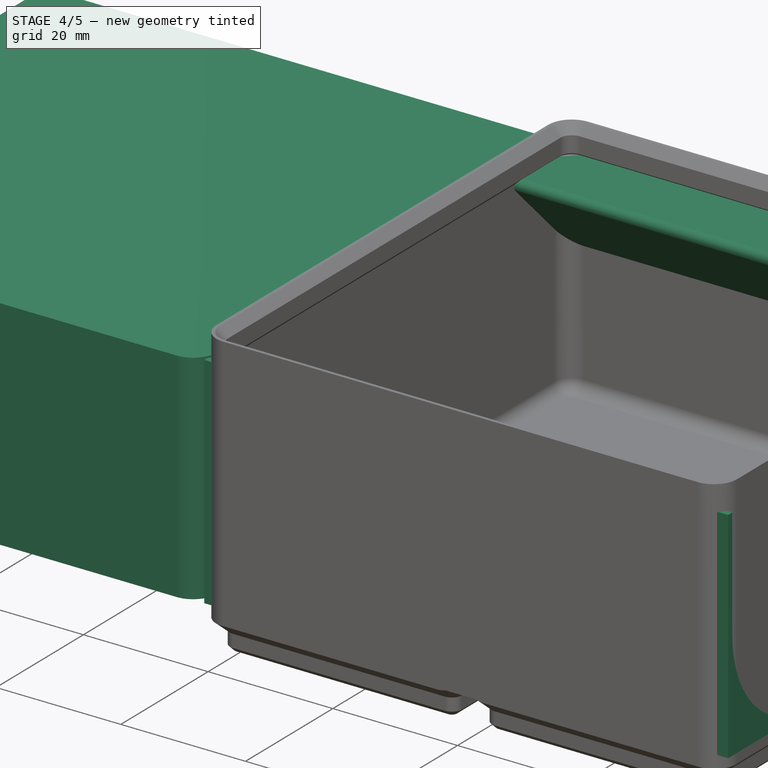
[diagram: stage 4 of 5 — iso view after this stage's code; geometry added in this stage tinted green]
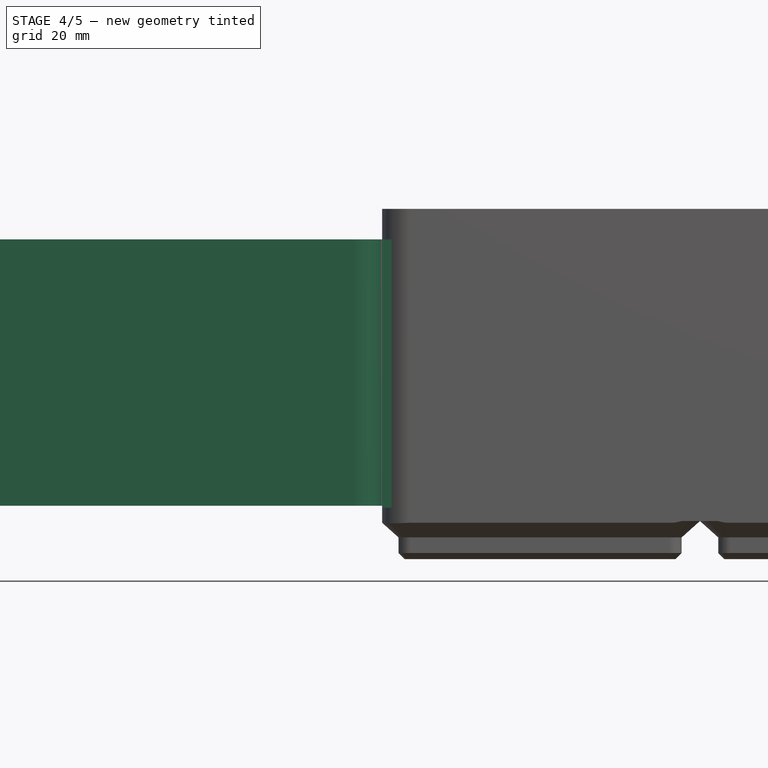
[diagram: stage 4 of 5 — front view after this stage's code; geometry added in this stage tinted green]
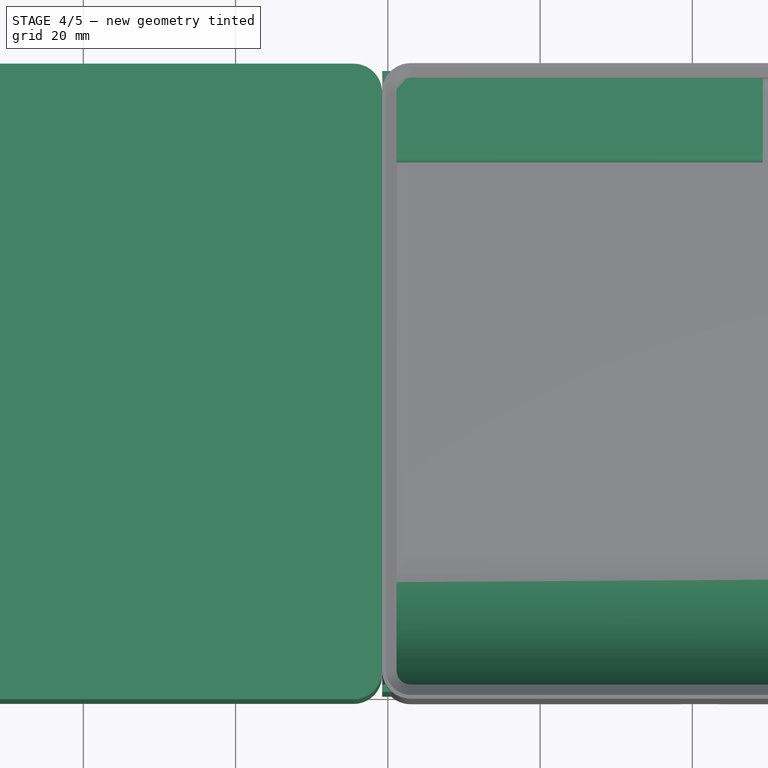
[diagram: stage 4 of 5 — top view after this stage's code; geometry added in this stage tinted green]
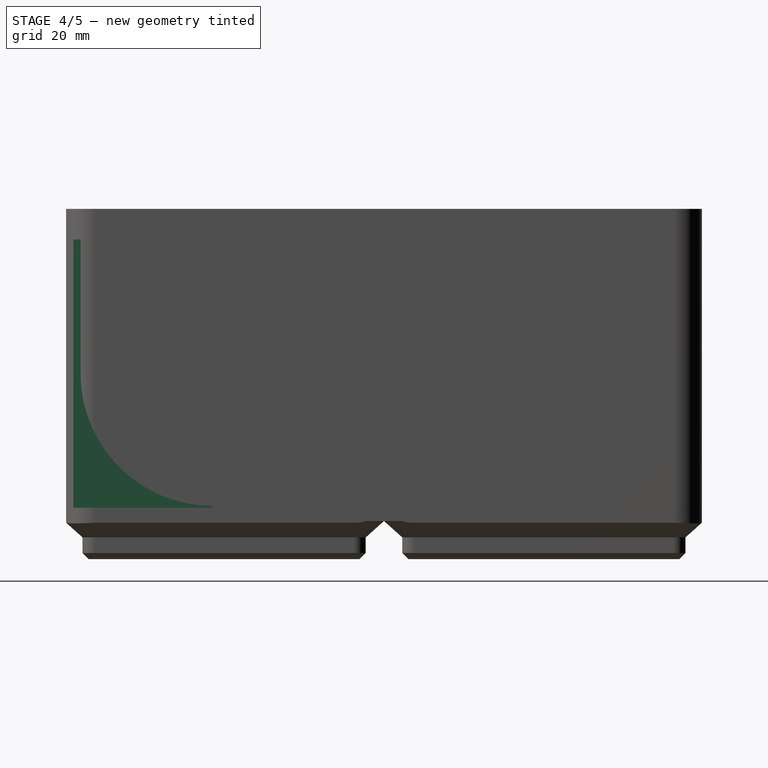
[diagram: stage 4 of 5 — right view after this stage's code; geometry added in this stage tinted green]
FEATURE [PartDesign::Pad] Pad003  label="Scoop"
  BaseFeature = -> AdditivePipe001
  Direction = (1,-2e-16,3e-16)
  Length = 84
  Length2 = 10
  Profile = -> Sketch014
  ReferenceAxis = -> Sketch014 [N_Axis]
  Type = 0
  expr: Length = <<data>>.xy_unit_val * <<data>>.x_units * <<data>>.eq_scoop
FEATURE [PartDesign::Pad] Pad004  label="Handle"
  BaseFeature = -> Pad003
  Direction = (1,-2e-16,3e-16)
  Length = 50
  Length2 = 10
  Profile = -> Sketch015
  ReferenceAxis = -> Sketch015 [N_Axis]
  Type = 0
  expr: Length = <<data>>.eq_handle_length * <<data>>.eq_handle
FEATURE [Sketcher::SketchObject] Sketch018  label="fill_sk"
  AttachmentOffset = pos=(-83.5,0,7) rot=(0,0,1;0rad)
  FullyConstrained = true
  MapMode = 5
  Placement = pos=(-83.5,0,7) rot=(0,0,1;0rad)
  Support = -> [XY_Plane001]
  expr: .AttachmentOffset.Base.x = <<data>>.eq_fill
  expr: .AttachmentOffset.Base.z = <<data>>.z_unit_val
  expr: Constraints[19] = <<data>>.corner_top
  expr: Constraints[20] = <<data>>.xy_unit_val * <<data>>.x_units - 2 * <<data>>.offset
  expr: Constraints[21] = <<data>>.xy_unit_val * <<data>>.y_units - 2 * <<data>>.offset
  expr: Constraints[22] = <<data>>.xy_unit_val / 2 - <<data>>.offset
  expr: Constraints[23] = <<data>>.xy_unit_val / 2 - <<data>>.offset
  sketch-geometry (10):
    g0: ArcOfCircle CenterX=-17 CenterY=59 CenterZ=0 NormalX=0 NormalY=0 NormalZ=1 AngleXU=0 Radius=3.75 StartAngle=1.5708 EndAngle=3.14159
    g1: LineSegment StartX=-17 StartY=62.75 StartZ=0 EndX=59 EndY=62.75 EndZ=0
    g2: ArcOfCircle CenterX=59 CenterY=59 CenterZ=0 NormalX=0 NormalY=0 NormalZ=1 AngleXU=0 Radius=3.75 StartAngle=3.73e-14 EndAngle=1.5708
    g3: LineSegment StartX=62.75 StartY=59 StartZ=0 EndX=62.75 EndY=-17 EndZ=0
    g4: ArcOfCircle CenterX=59 CenterY=-17 CenterZ=0 NormalX=0 NormalY=0 NormalZ=1 AngleXU=0 Radius=3.75 StartAngle=4.71239 EndAngle=6.28319
    g5: LineSegment StartX=59 StartY=-20.75 StartZ=0 EndX=-17 EndY=-20.75 EndZ=0
    g6: ArcOfCircle CenterX=-17 CenterY=-17 CenterZ=0 NormalX=0 NormalY=0 NormalZ=1 AngleXU=0 Radius=3.75 StartAngle=3.14159 EndAngle=4.71239
    g7: LineSegment StartX=-20.75 StartY=-17 StartZ=0 EndX=-20.75 EndY=59 EndZ=0
    g8: GeomPoint X=-20.75 Y=62.75 Z=0
    g9: GeomPoint X=62.75 Y=-20.75 Z=0
  constraints (24):
    c: Tangent(g0,g1) = 1.5708
    c: Tangent(g1,g2) = 1.5708
    c: Tangent(g2,g3) = 1.5708
    c: Tangent(g3,g4) = 1.5708
    c: Tangent(g4,g5) = 1.5708
    c: Tangent(g5,g6) = 1.5708
    c: Tangent(g6,g7) = 1.5708
    c: Tangent(g7,g0) = 1.5708
    c: Horizontal(g1)
    c: Horizontal(g5)
    c: Vertical(g3)
    c: Vertical(g7)
    c: Equal(g0,g2)
    c: Equal(g2,g4)
    c: Equal(g4,g6)
    c: PointOnObject(g8,g1)
    c: PointOnObject(g8,g7)
    c: PointOnObject(g9,g3)
    c: PointOnObject(g9,g5)
    c: Diameter(g0) = 7.5
    c: DistanceX(g0,g2) = 83.5
    c: DistanceY(g4,g1) = 83.5
    c: DistanceY(g5,g-1) = 20.75
    c: DistanceX(g6,g-1) = 20.75
FEATURE [PartDesign::Pocket] Pocket003  label="Sequential_Bridging_Support"
  BaseFeature = -> Pad004
  Direction = (0,0,-1)
  Length = 2.64
  Length2 = 5
  Profile = -> Sketch017
  ReferenceAxis = -> Sketch017 [N_Axis]
  Reversed = true
  Type = 0
  expr: Length = <<data>>.layer_height * 1.2 + <<data>>.mag_depth
FEATURE [PartDesign::Pad] Pad005  label="Bin_fill"
  BaseFeature = -> Pocket003
  Direction = (0,0,1)
  Length = 35
  Length2 = 10
  Profile = -> Sketch018
  ReferenceAxis = -> Sketch018 [N_Axis]
  Type = 0
  expr: Length = <<data>>.z_unit_val * (<<data>>.z_units - 1)
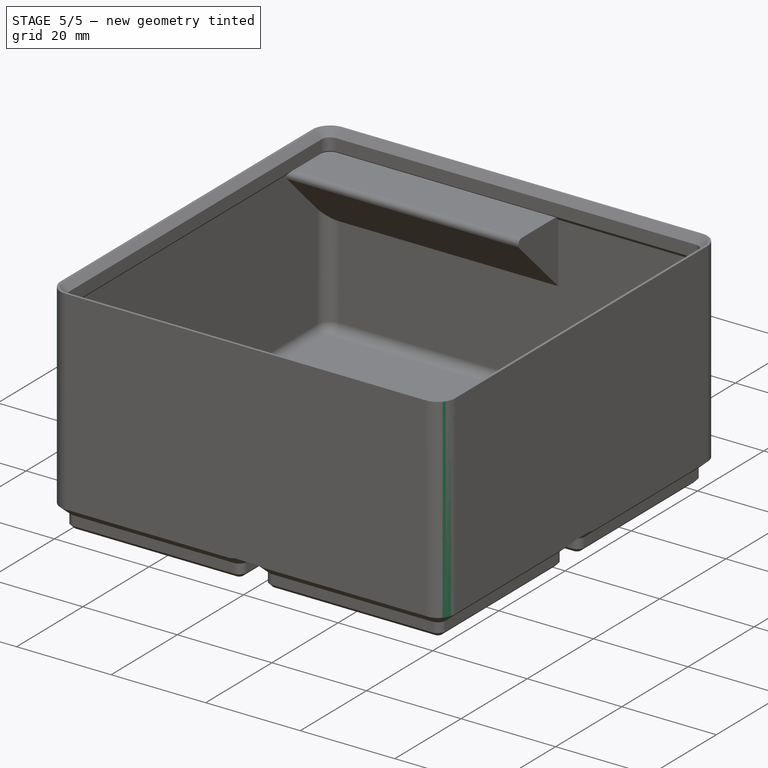
[diagram: stage 5 of 5 — iso view after this stage's code; geometry added in this stage tinted green]
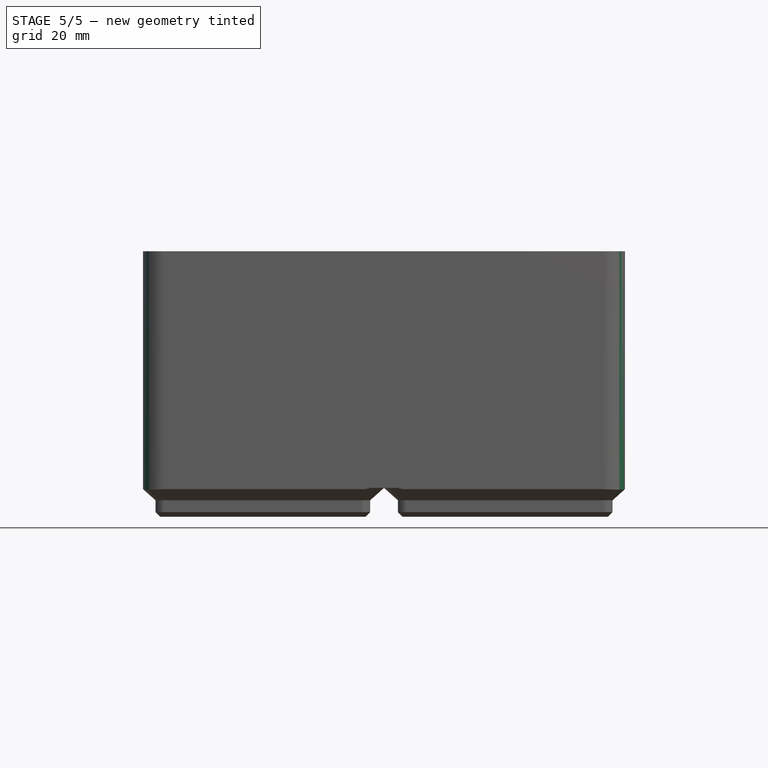
[diagram: stage 5 of 5 — front view after this stage's code; geometry added in this stage tinted green]
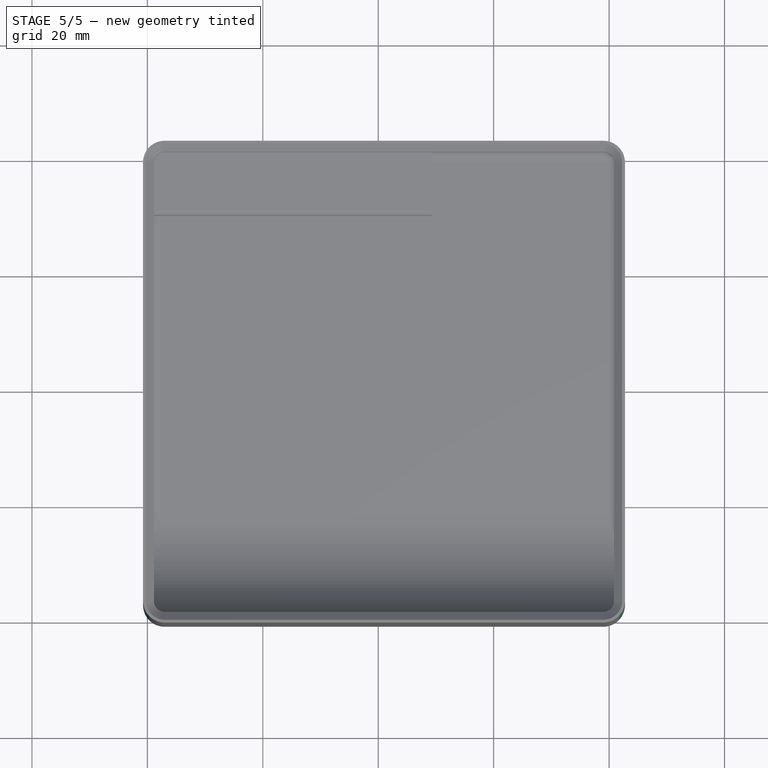
[diagram: stage 5 of 5 — top view after this stage's code; geometry added in this stage tinted green]
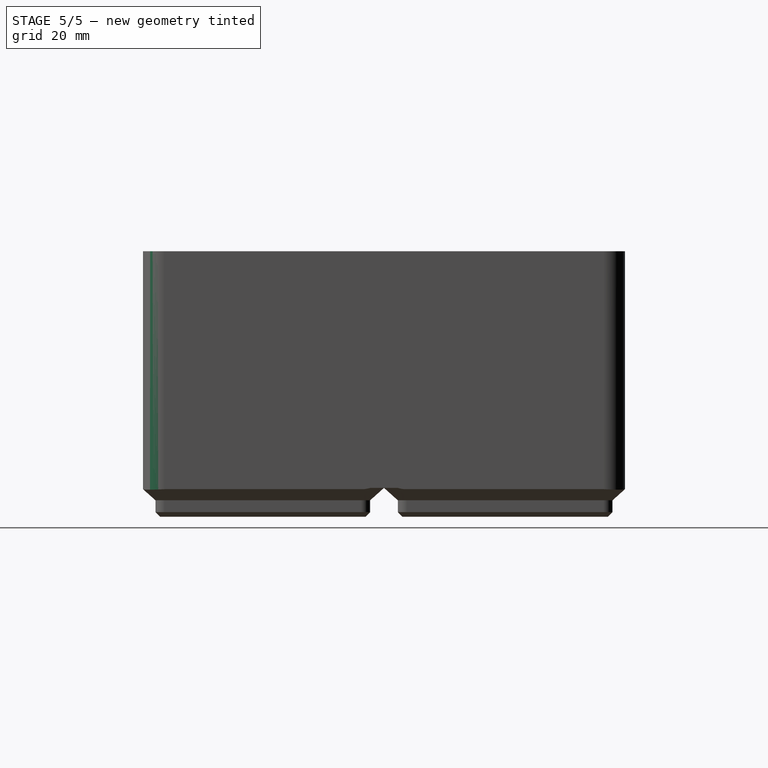
[diagram: stage 5 of 5 — right view after this stage's code; geometry added in this stage tinted green]
FEATURE [PartDesign::Mirrored] Mirrored
  MirrorPlane = -> XZ_Plane001
FEATURE [PartDesign::Mirrored] Mirrored001
  MirrorPlane = -> YZ_Plane001
FEATURE [PartDesign::LinearPattern] LinearPattern002
  Direction = -> X_Axis001
  Length = 42
  Occurrences = 2
  expr: Length = <<data>>.xy_unit_val * (<<data>>.x_units - 1)
  expr: Occurrences = <<data>>.x_units
FEATURE [PartDesign::LinearPattern] LinearPattern003
  Direction = -> Y_Axis001
  Length = 42
  Occurrences = 2
  expr: Length = <<data>>.xy_unit_val * (<<data>>.y_units - 1)
  expr: Occurrences = <<data>>.y_units
FEATURE [PartDesign::MultiTransform] MultiTransform001  label="MagScrew_Multitransform"
  BaseFeature = -> Pad005
  Originals = -> [Pocket001,Pocket002,Pocket003]
  Transformations = -> [Mirrored,Mirrored001,LinearPattern002,LinearPattern003]
FEATURE [Sketcher::SketchObject] Sketch020  label="EffFloor_sk_top"
  AttachmentOffset = pos=(0,0,100000) rot=(0,0,1;0rad)
  FullyConstrained = true
  MapMode = 5
  Placement = pos=(0,0,100000) rot=(0,0,1;0rad)
  Support = -> [XY_Plane001]
  expr: .AttachmentOffset.Base.z = <<data>>.eq_floor
  expr: Constraints[19] = <<data>>.corner_top - <<data>>.wall_thickness * 2
  expr: Constraints[22] = <<data>>.xy_top / 2 - <<data>>.wall_thickness
  sketch-geometry (10):
    g0: ArcOfCircle CenterX=-17 CenterY=17 CenterZ=0 NormalX=0 NormalY=0 NormalZ=1 AngleXU=0 Radius=2.8 StartAngle=1.5708 EndAngle=3.14159
    g1: LineSegment StartX=-17 StartY=19.8 StartZ=0 EndX=17 EndY=19.8 EndZ=0
    g2: ArcOfCircle CenterX=17 CenterY=17 CenterZ=0 NormalX=0 NormalY=0 NormalZ=1 AngleXU=0 Radius=2.8 StartAngle=6e-16 EndAngle=1.5708
    g3: LineSegment StartX=19.8 StartY=17 StartZ=0 EndX=19.8 EndY=-17 EndZ=0
    g4: ArcOfCircle CenterX=17 CenterY=-17 CenterZ=0 NormalX=0 NormalY=0 NormalZ=1 AngleXU=0 Radius=2.8 StartAngle=4.71239 EndAngle=6.28319
    g5: LineSegment StartX=17 StartY=-19.8 StartZ=0 EndX=-17 EndY=-19.8 EndZ=0
    g6: ArcOfCircle CenterX=-17 CenterY=-17 CenterZ=0 NormalX=0 NormalY=0 NormalZ=1 AngleXU=0 Radius=2.8 StartAngle=3.14159 EndAngle=4.71239
    g7: LineSegment StartX=-19.8 StartY=-17 StartZ=0 EndX=-19.8 EndY=17 EndZ=0
    g8: GeomPoint X=-19.8 Y=19.8 Z=0
    g9: GeomPoint X=19.8 Y=-19.8 Z=0
  constraints (23):
    c: Tangent(g0,g1) = 1.5708
    c: Tangent(g1,g2) = 1.5708
    c: Tangent(g2,g3) = 1.5708
    c: Tangent(g3,g4) = 1.5708
    c: Tangent(g4,g5) = 1.5708
    c: Tangent(g5,g6) = 1.5708
    c: Tangent(g6,g7) = 1.5708
    c: Tangent(g7,g0) = 1.5708
    c: Horizontal(g1)
    c: Horizontal(g5)
    c: Vertical(g3)
    c: Vertical(g7)
    c: Equal(g0,g2)
    c: Equal(g2,g4)
    c: Equal(g4,g6)
    c: PointOnObject(g8,g1)
    c: PointOnObject(g8,g7)
    c: PointOnObject(g9,g3)
    c: PointOnObject(g9,g5)
    c: Diameter(g0) = 5.6
    c: Symmetric(g2,g6,g-1)
    c: Equal(g1,g3)
    c: DistanceX(g6,g-1) = 19.8
FEATURE [PartDesign::Pocket] Pocket004  label="EffFloor_template"
  BaseFeature = -> MultiTransform001
  Direction = (0,0,-1)
  Length = 5
  Length2 = 3.8
  Profile = -> Sketch020
  ReferenceAxis = -> Sketch020 [N_Axis]
  Reversed = true
  TaperAngle2 = -45
  Type = 4
  expr: Length2 = <<data>>.baseplate_z - <<data>>.offset - <<data>>.floor_thickness
FEATURE [PartDesign::LinearPattern] LinearPattern004
  Direction = -> X_Axis001
  Length = 42
  Occurrences = 2
  expr: Length = <<data>>.xy_unit_val * (<<data>>.x_units - 1)
  expr: Occurrences = <<data>>.x_units
FEATURE [PartDesign::LinearPattern] LinearPattern005
  Direction = -> Y_Axis001
  Length = 42
  Occurrences = 2
  expr: Length = <<data>>.xy_unit_val * (<<data>>.y_units - 1)
  expr: Occurrences = <<data>>.y_units
FEATURE [PartDesign::MultiTransform] MultiTransform002  label="EffFloor_Multitransform"
  BaseFeature = -> Pocket004
  Originals = -> [Pocket004]
  Transformations = -> [LinearPattern004,LinearPattern005]
FEATURE [PartDesign::Pocket] Pocket005  label="Edge_Cleanup"
  BaseFeature = -> MultiTransform002
  Direction = (0,0,-1)
  Length = 5
  Length2 = 5
  Profile = -> Sketch016
  ReferenceAxis = -> Sketch016 [N_Axis]
  Refine = true
  Type = 1
FEATURE [PartDesign::Body] Body001  label="Bin_blank"
  Group = -> [Sketch007,Pad001,Boolean,Sketch010,Pocket001,Sketch011,Pocket002,Sketch012,Sketch013,Sketch009,Sketch008,Sketch014,Sketch015,Sketch017,AdditivePipe,AdditivePipe001,Pad003,Pad004,Sketch018,Pocket003,Pad005,MultiTransform001,Mirrored,Mirrored001,LinearPattern002,LinearPattern003,Sketch020,Pocket004,MultiTransform002,LinearPattern004,LinearPattern005,Sketch016,Pocket005]
  Origin = -> Origin001
  Tip = -> Pocket005
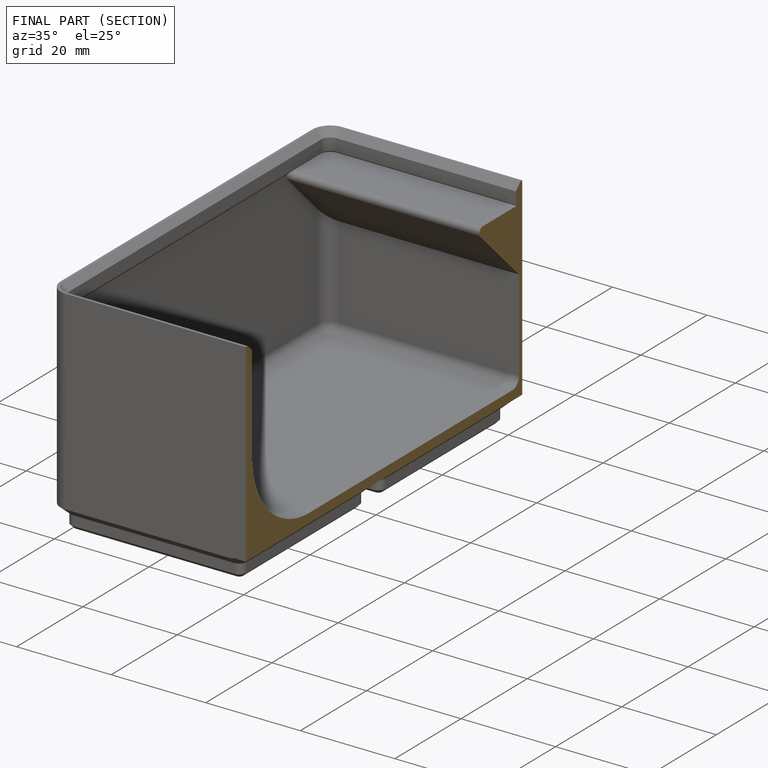
[diagram: finished part — half-section view (interior)]
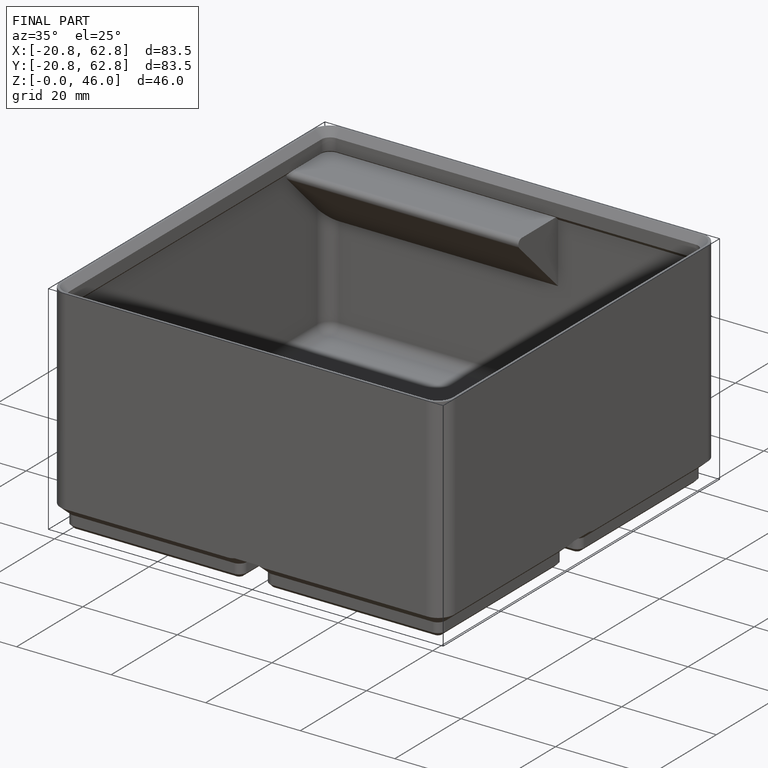
[diagram: finished part — iso view with bounding-box wireframe]
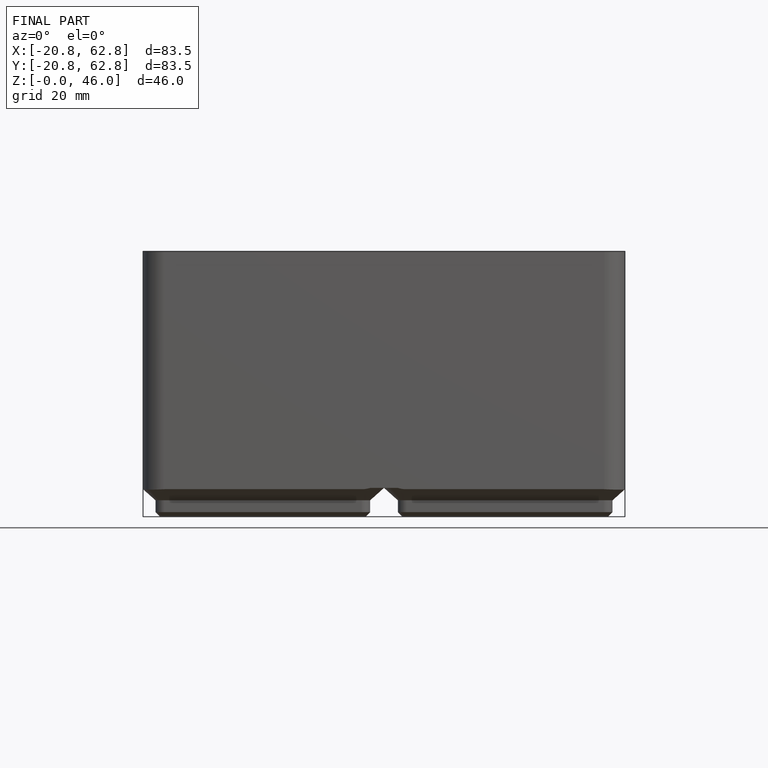
[diagram: finished part — front view with bounding-box wireframe]
